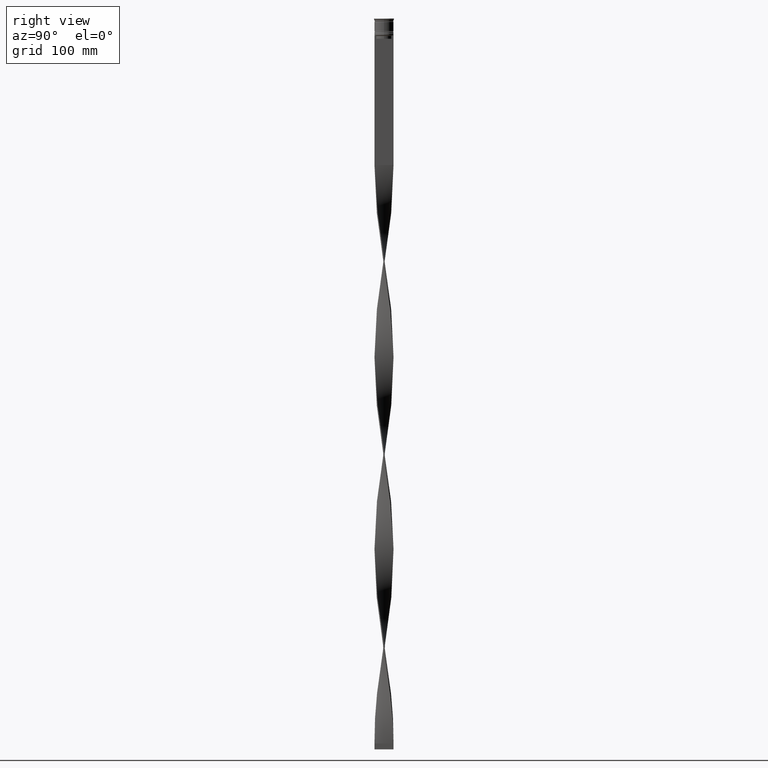
[diagram: clean part render]
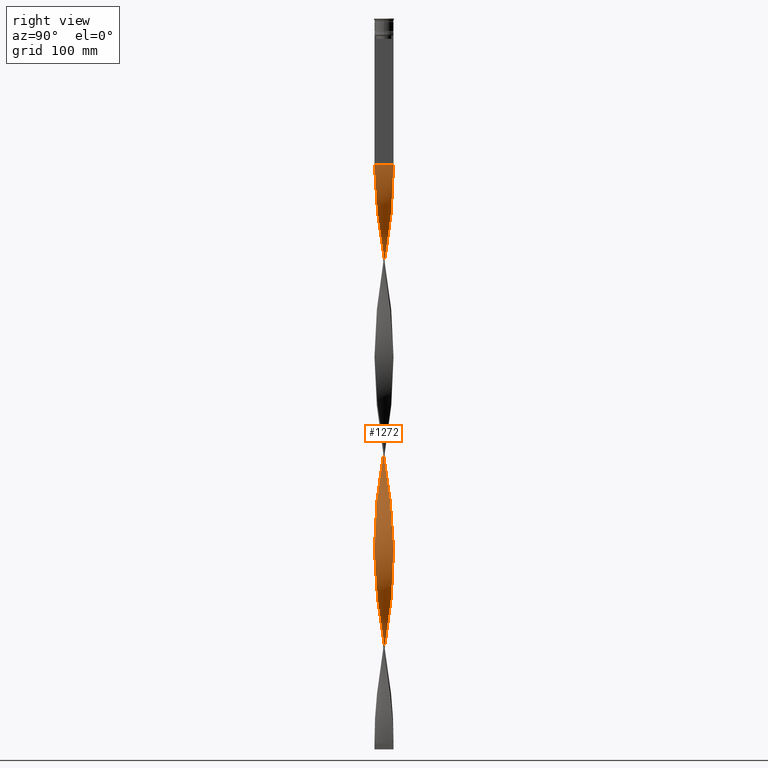
[diagram: same view with one face highlighted and labeled with its STEP entity id]
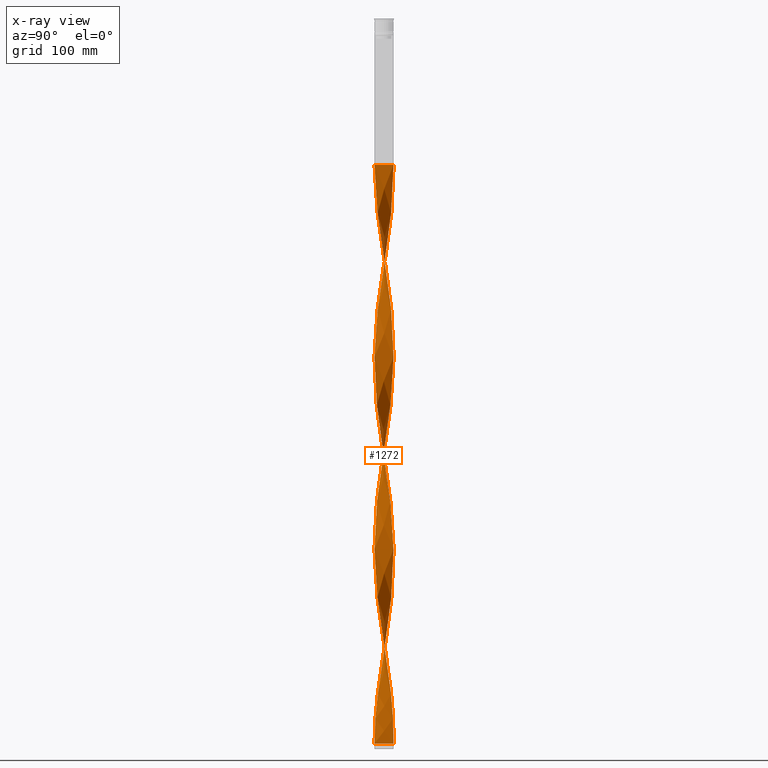
[diagram: x-ray of the same camera — body ghosted, the highlighted face saturated]
A machine part, right view. The second image highlights one B-rep face of the part: STEP entity #1272.
The next image is the same camera in x-ray: the body ghosted, the highlighted face saturated — about 0% of this face is hidden behind the body in this view.
In plain terms, the highlighted face is a freeform B-spline surface patch.
Its self-contained STEP definition (entity closure, byte-faithful):
#6 = CARTESIAN_POINT ( 'NONE',  ( -2.953492255452156989, -7.468681369799075931, -268.8000000000001251 ) ) ;
#12 = CARTESIAN_POINT ( 'NONE',  ( -5.500329109473821809, 5.852409554540299652, -489.1200000000001182 ) ) ;
#25 = VECTOR ( 'NONE', #3626, 1000.000000000000000 ) ;
#29 = CARTESIAN_POINT ( 'NONE',  ( -3.409884664421546585, -7.254149610763668932, -589.5600000000000591 ) ) ;
#31 = CARTESIAN_POINT ( 'NONE',  ( 8.015817384569142945, 0.5009885865355726553, -204.0000000000000284 ) ) ;
#38 = CARTESIAN_POINT ( 'NONE',  ( 7.762960627548699755, 1.996607696851999680, -382.2000000000000455 ) ) ;
#42 = CARTESIAN_POINT ( 'NONE',  ( -3.866277073390936181, -7.039617851728263709, -586.3200000000000500 ) ) ;
#53 = CARTESIAN_POINT ( 'NONE',  ( -7.762960627548698866, -1.996607696852002345, -544.2000000000000455 ) ) ;
#54 = CARTESIAN_POINT ( 'NONE',  ( -5.495492638774153171, 5.856951302834851880, -320.6400000000001000 ) ) ;
#57 = CARTESIAN_POINT ( 'NONE',  ( 0.003317338029196290321, 8.031457333626828898, -605.7599999999999909 ) ) ;
#60 = CARTESIAN_POINT ( 'NONE',  ( 7.265667412356198618, 3.422629830937731654, -391.9200000000000728 ) ) ;
#63 = CARTESIAN_POINT ( 'NONE',  ( -1.498723219171671284, -7.874250993733667769, -602.5200000000000955 ) ) ;
#74 = CARTESIAN_POINT ( 'NONE',  ( -2.473810677883153453, -7.624320345446617964, -596.0399999999999636 ) ) ;
#75 = CARTESIAN_POINT ( 'NONE',  ( -8.015817384569142945, -0.5009885865355698797, -366.0000000000000000 ) ) ;
#77 = CARTESIAN_POINT ( 'NONE',  ( -0.5000000000000027756, 8.000000000000003553, -609.0000000000000000 ) ) ;
#80 = CARTESIAN_POINT ( 'NONE',  ( 2.000555335823854808, -7.778309344253825586, -301.2000000000000455 ) ) ;
#85 = CARTESIAN_POINT ( 'NONE',  ( 4.292182732835652992, 6.769576603300047957, -421.0799999999999841 ) ) ;
#100 = CARTESIAN_POINT ( 'NONE',  ( -1.498723219171673948, 7.874250993733674875, -291.4800000000000182 ) ) ;
#112 = CARTESIAN_POINT ( 'NONE',  ( -6.782961227863128606, 4.300669120951436497, -502.0800000000000409 ) ) ;
#126 = CARTESIAN_POINT ( 'NONE',  ( -6.782961227863131271, -4.300669120951444491, -391.9200000000001296 ) ) ;
#135 = CARTESIAN_POINT ( 'NONE',  ( -1.498723219171673948, 7.874250993733674875, -291.4800000000000182 ) ) ;
#148 = CARTESIAN_POINT ( 'NONE',  ( -2.000555335823849035, -7.778309344253833579, -430.8000000000000682 ) ) ;
#150 = CARTESIAN_POINT ( 'NONE',  ( -5.500329109473821809, 5.852409554540299652, -165.1200000000000045 ) ) ;
#156 = CARTESIAN_POINT ( 'NONE',  ( -2.953492255452163207, 7.468681369799081260, -301.2000000000000455 ) ) ;
#180 = CARTESIAN_POINT ( 'NONE',  ( 2.953492255452160542, -7.468681369799081260, -139.1999999999999602 ) ) ;
#199 =( BOUNDED_SURFACE ( )  B_SPLINE_SURFACE ( 1, 2, ( 
 ( #4459, #1358, #368, #1684, #3378, #3442, #3012, #2673, #4395, #2367, #3033, #3057, #323, #3778, #4112, #2016, #4444, #4418, #1336, #1290, #2739, #1706, #2065, #2345, #1313, #3747, #4045, #1020, #3726, #2412, #3707, #2719, #1048, #688, #346, #280, #2436, #618, #1996, #640, #709, #302, #996, #1727, #3101, #6, #2766, #4141, #3800, #4092, #2385, #661, #2044, #4164, #2457, #80, #1459, #1094, #1070, #2139, #3130, #2504, #3824, #1413, #732, #1801, #2482, #2836, #4215, #2112, #1118, #3848, #3489, #758, #3512, #2789, #419, #397, #1778, #1753, #38, #3153, #2809, #60, #1436, #4187, #3173, #1804, #3852, #3515, #3872, #1825, #85, #4145, #2792, #762, #2486, #3805, #2416, #1052, #783, #3135, #3782, #2143, #2461, #3828, #737, #3177, #1758, #423, #4169, #3204, #1463, #12, #2166, #2863, #713, #112, #2093, #691, #4220, #2841, #3446, #1489, #1122, #3105, #2070, #2509, #3536, #3468, #350, #2439, #445, #4191, #1391, #1417, #4240, #1075, #2118, #1099, #2771, #1731, #372, #42, #3496, #400, #1782, #3156, #63, #1440, #2814 ),
 ( #4326, #2256, #803, #1867, #1912, #180, #3560, #1589, #3644, #1529, #2216, #1207, #1188, #4288, #469, #3311, #2609, #3579, #2883, #213, #2574, #1225, #533, #1886, #1927, #1160, #890, #3294, #200, #2593, #2236, #1576, #2947, #490, #3981, #2964, #829, #2280, #549, #1140, #2552, #2527, #1557, #3893, #3923, #2191, #3964, #4260, #3245, #1847, #3600, #3227, #135, #2929, #4310, #156, #3946, #849, #1508, #2906, #510, #3268, #868, #3621, #3375, #2990, #3723, #615, #3745, #928, #2364, #2633, #2716, #1654, #909, #1247, #1265, #2314, #2298, #2042, #2696, #636, #658, #3680, #4089, #278, #592, #975, #2013, #568, #3395, #1971, #1944, #3420, #994, #951, #3661, #3030, #1286, #2342, #1702, #3330, #3355, #3009, #4414, #4068, #321, #4392, #233, #299, #4346, #4000, #1616, #257, #4368, #2670, #1310, #1679, #3055, #1635, #4041, #2649, #3704, #4020, #4441, #1334, #2383, #1993, #1382, #3820, #1355, #2806, #2432, #3487, #2736, #3128, #1116, #4184, #2135, #3438, #2502, #3775, #3531, #1044, #778, #2763, #1067, #1090, #395, #57, #77 ) ),
 .UNSPECIFIED., .F., .F., .F. ) 
 B_SPLINE_SURFACE_WITH_KNOTS ( ( 2, 2 ),
 ( 3, 2, 2, 2, 2, 2, 2, 2, 2, 2, 2, 2, 2, 2, 2, 2, 2, 2, 2, 2, 2, 2, 2, 2, 2, 2, 2, 2, 2, 2, 2, 2, 2, 2, 2, 2, 2, 2, 2, 2, 2, 2, 2, 2, 2, 2, 2, 2, 2, 2, 2, 2, 2, 2, 2, 2, 2, 2, 2, 2, 2, 2, 2, 2, 2, 2, 2, 2, 2, 2, 2, 2, 2, 2, 2, 3 ),
 ( 0.000000000000000000, 1.000000000000000000 ),
 ( 0.000000000000000000, 0.01000000000000000021, 0.02000000000000000042, 0.02999999999999999889, 0.04000000000000000083, 0.05000000000000000278, 0.05999999999999999778, 0.07000000000000000666, 0.08000000000000000167, 0.08999999999999999667, 0.1000000000000000056, 0.1100000000000000006, 0.1199999999999999956, 0.1300000000000000044, 0.1400000000000000133, 0.1499999999999999944, 0.1600000000000000033, 0.1700000000000000122, 0.1799999999999999933, 0.1900000000000000022, 0.2000000000000000111, 0.2099999999999999922, 0.2200000000000000011, 0.2300000000000000100, 0.2399999999999999911, 0.2500000000000000000, 0.2600000000000000089, 0.2700000000000000178, 0.2800000000000000266, 0.2899999999999999800, 0.2999999999999999889, 0.3099999999999999978, 0.3200000000000000067, 0.3300000000000000155, 0.3400000000000000244, 0.3499999999999999778, 0.3599999999999999867, 0.3699999999999999956, 0.3800000000000000044, 0.3900000000000000133, 0.4000000000000000222, 0.4099999999999999756, 0.4199999999999999845, 0.4299999999999999933, 0.4400000000000000022, 0.4500000000000000111, 0.4600000000000000200, 0.4699999999999999734, 0.4799999999999999822, 0.4899999999999999911, 0.5000000000000000000, 0.5100000000000000089, 0.5200000000000000178, 0.5300000000000000266, 0.5400000000000000355, 0.5500000000000000444, 0.5600000000000000533, 0.5699999999999999512, 0.5799999999999999600, 0.5899999999999999689, 0.5999999999999999778, 0.6099999999999999867, 0.6199999999999999956, 0.6300000000000000044, 0.6400000000000000133, 0.6500000000000000222, 0.6600000000000000311, 0.6700000000000000400, 0.6800000000000000488, 0.6899999999999999467, 0.6999999999999999556, 0.7099999999999999645, 0.7199999999999999734, 0.7299999999999999822, 0.7399999999999999911, 0.7500000000000000000 ),
 .UNSPECIFIED. ) 
 GEOMETRIC_REPRESENTATION_ITEM ( )  RATIONAL_B_SPLINE_SURFACE ( (
 ( 1.000000000000000000, 0.9980267284282715590, 1.000000000000000000, 0.9980267284282715590, 1.000000000000000000, 0.9980267284282715590, 1.000000000000000000, 0.9980267284282715590, 1.000000000000000000, 0.9980267284282715590, 1.000000000000000000, 0.9980267284282715590, 1.000000000000000000, 0.9980267284282715590, 1.000000000000000000, 0.9980267284282715590, 1.000000000000000000, 0.9980267284282715590, 1.000000000000000000, 0.9980267284282715590, 1.000000000000000000, 0.9980267284282715590, 1.000000000000000000, 0.9980267284282715590, 1.000000000000000000, 0.9980267284282715590, 1.000000000000000000, 0.9980267284282715590, 1.000000000000000000, 0.9980267284282715590, 1.000000000000000000, 0.9980267284282715590, 1.000000000000000000, 0.9980267284282715590, 1.000000000000000000, 0.9980267284282715590, 1.000000000000000000, 0.9980267284282715590, 1.000000000000000000, 0.9980267284282715590, 1.000000000000000000, 0.9980267284282715590, 1.000000000000000000, 0.9980267284282715590, 1.000000000000000000, 0.9980267284282715590, 1.000000000000000000, 0.9980267284282715590, 1.000000000000000000, 0.9980267284282715590, 1.000000000000000000, 0.9980267284282715590, 1.000000000000000000, 0.9980267284282715590, 1.000000000000000000, 0.9980267284282715590, 1.000000000000000000, 0.9980267284282715590, 1.000000000000000000, 0.9980267284282715590, 1.000000000000000000, 0.9980267284282715590, 1.000000000000000000, 0.9980267284282715590, 1.000000000000000000, 0.9980267284282715590, 1.000000000000000000, 0.9980267284282715590, 1.000000000000000000, 0.9980267284282715590, 1.000000000000000000, 0.9980267284282715590, 1.000000000000000000, 0.9980267284282715590, 1.000000000000000000, 0.9980267284282715590, 1.000000000000000000, 0.9980267284282715590, 1.000000000000000000, 0.9980267284282715590, 1.000000000000000000, 0.9980267284282715590, 1.000000000000000000, 0.9980267284282715590, 1.000000000000000000, 0.9980267284282715590, 1.000000000000000000, 0.9980267284282715590, 1.000000000000000000, 0.9980267284282715590, 1.000000000000000000, 0.9980267284282715590, 1.000000000000000000, 0.9980267284282715590, 1.000000000000000000, 0.9980267284282715590, 1.000000000000000000, 0.9980267284282715590, 1.000000000000000000, 0.9980267284282715590, 1.000000000000000000, 0.9980267284282715590, 1.000000000000000000, 0.9980267284282715590, 1.000000000000000000, 0.9980267284282715590, 1.000000000000000000, 0.9980267284282715590, 1.000000000000000000, 0.9980267284282715590, 1.000000000000000000, 0.9980267284282715590, 1.000000000000000000, 0.9980267284282715590, 1.000000000000000000, 0.9980267284282715590, 1.000000000000000000, 0.9980267284282715590, 1.000000000000000000, 0.9980267284282715590, 1.000000000000000000, 0.9980267284282715590, 1.000000000000000000, 0.9980267284282715590, 1.000000000000000000, 0.9980267284282715590, 1.000000000000000000, 0.9980267284282715590, 1.000000000000000000, 0.9980267284282715590, 1.000000000000000000, 0.9980267284282715590, 1.000000000000000000, 0.9980267284282715590, 1.000000000000000000, 0.9980267284282715590, 1.000000000000000000, 0.9980267284282715590, 1.000000000000000000, 0.9980267284282715590, 1.000000000000000000, 0.9980267284282715590, 1.000000000000000000, 0.9980267284282715590, 1.000000000000000000, 0.9980267284282715590, 1.000000000000000000, 0.9980267284282715590, 1.000000000000000000, 0.9980267284282715590, 1.000000000000000000),
 ( 1.000000000000000000, 0.9980267284282715590, 1.000000000000000000, 0.9980267284282715590, 1.000000000000000000, 0.9980267284282715590, 1.000000000000000000, 0.9980267284282715590, 1.000000000000000000, 0.9980267284282715590, 1.000000000000000000, 0.9980267284282715590, 1.000000000000000000, 0.9980267284282715590, 1.000000000000000000, 0.9980267284282715590, 1.000000000000000000, 0.9980267284282715590, 1.000000000000000000, 0.9980267284282715590, 1.000000000000000000, 0.9980267284282715590, 1.000000000000000000, 0.9980267284282715590, 1.000000000000000000, 0.9980267284282715590, 1.000000000000000000, 0.9980267284282715590, 1.000000000000000000, 0.9980267284282715590, 1.000000000000000000, 0.9980267284282715590, 1.000000000000000000, 0.9980267284282715590, 1.000000000000000000, 0.9980267284282715590, 1.000000000000000000, 0.9980267284282715590, 1.000000000000000000, 0.9980267284282715590, 1.000000000000000000, 0.9980267284282715590, 1.000000000000000000, 0.9980267284282715590, 1.000000000000000000, 0.9980267284282715590, 1.000000000000000000, 0.9980267284282715590, 1.000000000000000000, 0.9980267284282715590, 1.000000000000000000, 0.9980267284282715590, 1.000000000000000000, 0.9980267284282715590, 1.000000000000000000, 0.9980267284282715590, 1.000000000000000000, 0.9980267284282715590, 1.000000000000000000, 0.9980267284282715590, 1.000000000000000000, 0.9980267284282715590, 1.000000000000000000, 0.9980267284282715590, 1.000000000000000000, 0.9980267284282715590, 1.000000000000000000, 0.9980267284282715590, 1.000000000000000000, 0.9980267284282715590, 1.000000000000000000, 0.9980267284282715590, 1.000000000000000000, 0.9980267284282715590, 1.000000000000000000, 0.9980267284282715590, 1.000000000000000000, 0.9980267284282715590, 1.000000000000000000, 0.9980267284282715590, 1.000000000000000000, 0.9980267284282715590, 1.000000000000000000, 0.9980267284282715590, 1.000000000000000000, 0.9980267284282715590, 1.000000000000000000, 0.9980267284282715590, 1.000000000000000000, 0.9980267284282715590, 1.000000000000000000, 0.9980267284282715590, 1.000000000000000000, 0.9980267284282715590, 1.000000000000000000, 0.9980267284282715590, 1.000000000000000000, 0.9980267284282715590, 1.000000000000000000, 0.9980267284282715590, 1.000000000000000000, 0.9980267284282715590, 1.000000000000000000, 0.9980267284282715590, 1.000000000000000000, 0.9980267284282715590, 1.000000000000000000, 0.9980267284282715590, 1.000000000000000000, 0.9980267284282715590, 1.000000000000000000, 0.9980267284282715590, 1.000000000000000000, 0.9980267284282715590, 1.000000000000000000, 0.9980267284282715590, 1.000000000000000000, 0.9980267284282715590, 1.000000000000000000, 0.9980267284282715590, 1.000000000000000000, 0.9980267284282715590, 1.000000000000000000, 0.9980267284282715590, 1.000000000000000000, 0.9980267284282715590, 1.000000000000000000, 0.9980267284282715590, 1.000000000000000000, 0.9980267284282715590, 1.000000000000000000, 0.9980267284282715590, 1.000000000000000000, 0.9980267284282715590, 1.000000000000000000, 0.9980267284282715590, 1.000000000000000000, 0.9980267284282715590, 1.000000000000000000, 0.9980267284282715590, 1.000000000000000000, 0.9980267284282715590, 1.000000000000000000, 0.9980267284282715590, 1.000000000000000000, 0.9980267284282715590, 1.000000000000000000, 0.9980267284282715590, 1.000000000000000000, 0.9980267284282715590, 1.000000000000000000) ) ) 
 REPRESENTATION_ITEM ( '' )  SURFACE ( )  );
#200 = CARTESIAN_POINT ( 'NONE',  ( 7.764607348536650022, 1.990194142050143666, -213.7200000000000273 ) ) ;
#207 = CARTESIAN_POINT ( 'NONE',  ( 5.845393947331972484, 5.484648539377414700, -563.6399999999999864 ) ) ;
#209 = CARTESIAN_POINT ( 'NONE',  ( -7.022536801505615323, -3.864450397080966049, -233.1599999999999966 ) ) ;
#213 = CARTESIAN_POINT ( 'NONE',  ( 7.637344718665186605, -2.485011781637413986, -184.5600000000000307 ) ) ;
#224 = CARTESIAN_POINT ( 'NONE',  ( 2.480108178533297458, 7.622274163448353512, -589.5600000000000591 ) ) ;
#226 = CARTESIAN_POINT ( 'NONE',  ( -8.015400789812517246, -0.5076101705763141902, -210.4800000000000182 ) ) ;
#233 = CARTESIAN_POINT ( 'NONE',  ( 4.292182732835656545, -6.769576603300054174, -472.9200000000000159 ) ) ;
#251 = CARTESIAN_POINT ( 'NONE',  ( 7.453943633173757632, 2.947664213147158208, -544.2000000000000455 ) ) ;
#253 = CARTESIAN_POINT ( 'NONE',  ( -3.866277073390936625, -7.039617851728263709, -262.3199999999999932 ) ) ;
#257 = CARTESIAN_POINT ( 'NONE',  ( 6.186229683506285326, -5.121999629979046453, -489.1200000000001182 ) ) ;
#274 = CARTESIAN_POINT ( 'NONE',  ( -7.762960627548698866, -1.996607696852002345, -220.2000000000000171 ) ) ;
#276 = CARTESIAN_POINT ( 'NONE',  ( 3.866277073390941510, -7.039617851728269926, -145.6800000000000352 ) ) ;
#278 = CARTESIAN_POINT ( 'NONE',  ( -6.190458785190114277, -5.116887524214530636, -398.4000000000000909 ) ) ;
#280 = CARTESIAN_POINT ( 'NONE',  ( -6.779406190655033804, -4.306270963224198667, -236.4000000000000341 ) ) ;
#293 = CARTESIAN_POINT ( 'NONE',  ( 7.639394946319397306, -2.478701829738565010, -353.0400000000000205 ) ) ;
#299 = CARTESIAN_POINT ( 'NONE',  ( 4.718088392280371579, -6.499535354871838422, -476.1600000000000250 ) ) ;
#302 = CARTESIAN_POINT ( 'NONE',  ( -4.718088392280368026, -6.499535354871833093, -255.8399999999999750 ) ) ;
#318 = CARTESIAN_POINT ( 'NONE',  ( -5.500329109473821809, 5.852409554540299652, -489.1200000000001182 ) ) ;
#320 = CARTESIAN_POINT ( 'NONE',  ( 2.000555335823852587, 7.778309344253832691, -268.8000000000000682 ) ) ;
#321 = CARTESIAN_POINT ( 'NONE',  ( 3.409884664421551026, -7.254149610763674261, -466.4399999999999977 ) ) ;
#323 = CARTESIAN_POINT ( 'NONE',  ( -5.111892533718801701, 6.174022572335633896, -161.8799999999999955 ) ) ;
#337 = CARTESIAN_POINT ( 'NONE',  ( -5.845393947331967155, 5.484648539377410259, -492.3600000000000136 ) ) ;
#346 = CARTESIAN_POINT ( 'NONE',  ( -7.022536801505615323, -3.864450397080966049, -233.1599999999999966 ) ) ;
#350 = CARTESIAN_POINT ( 'NONE',  ( -7.762960627548698866, -1.996607696852002345, -544.2000000000000455 ) ) ;
#361 = CARTESIAN_POINT ( 'NONE',  ( -0.003317338029197808638, 8.031457333626823569, -450.2400000000000659 ) ) ;
#368 = CARTESIAN_POINT ( 'NONE',  ( -0.5066085178571945180, 7.999584227297972916, -129.4800000000000182 ) ) ;
#372 = CARTESIAN_POINT ( 'NONE',  ( -4.292182732835652104, -6.769576603300047957, -583.0800000000000409 ) ) ;
#390 = CARTESIAN_POINT ( 'NONE',  ( 4.292182732835652992, 6.769576603300047957, -421.0799999999999841 ) ) ;
#392 = CARTESIAN_POINT ( 'NONE',  ( -3.409884664421553691, 7.254149610763673373, -304.4400000000000546 ) ) ;
#395 = CARTESIAN_POINT ( 'NONE',  ( 0.5066085178571940739, 7.999584227297980021, -602.5200000000000955 ) ) ;
#397 = CARTESIAN_POINT ( 'NONE',  ( 8.015400789812517246, 0.5076101705763128580, -372.4800000000000750 ) ) ;
#400 = CARTESIAN_POINT ( 'NONE',  ( -2.953492255452156989, -7.468681369799075931, -592.8000000000001819 ) ) ;
#412 = CARTESIAN_POINT ( 'NONE',  ( 1.994129100314147918, 7.779959321094163549, -437.2800000000000296 ) ) ;
#414 = CARTESIAN_POINT ( 'NONE',  ( -1.994129100314149694, 7.779959321094168878, -294.7199999999999704 ) ) ;
#419 = CARTESIAN_POINT ( 'NONE',  ( 8.015609087190826543, 0.003310792020373622829, -369.2400000000000091 ) ) ;
#423 = CARTESIAN_POINT ( 'NONE',  ( -3.872091084340837153, 7.036421572160659110, -476.1600000000000250 ) ) ;
#436 = CARTESIAN_POINT ( 'NONE',  ( 4.292182732835656545, -6.769576603300054174, -472.9200000000000159 ) ) ;
#445 = CARTESIAN_POINT ( 'NONE',  ( -7.451506065510689503, -2.953820806287570377, -550.6800000000000637 ) ) ;
#458 = CARTESIAN_POINT ( 'NONE',  ( -7.451506065510697496, 2.953820806287569045, -343.3199999999999932 ) ) ;
#462 = CARTESIAN_POINT ( 'NONE',  ( -4.297773521152309151, 6.766028581145814513, -155.4000000000000057 ) ) ;
#469 = CARTESIAN_POINT ( 'NONE',  ( 6.482817937080661785, -4.714135296601624781, -168.3600000000000136 ) ) ;
#481 = CARTESIAN_POINT ( 'NONE',  ( 0.003317338029196290755, 8.031457333626830675, -281.7599999999999909 ) ) ;
#483 = CARTESIAN_POINT ( 'NONE',  ( -4.723455957963782481, 6.495635590130969916, -158.6400000000000148 ) ) ;
#490 = CARTESIAN_POINT ( 'NONE',  ( 6.782961227863133047, 4.300669120951441826, -229.9200000000000443 ) ) ;
#502 = CARTESIAN_POINT ( 'NONE',  ( 7.022536801505622428, -3.864450397080966937, -498.8400000000000318 ) ) ;
#510 = CARTESIAN_POINT ( 'NONE',  ( -5.106790515527262819, 6.178243328853343819, -317.4000000000000341 ) ) ;
#527 = CARTESIAN_POINT ( 'NONE',  ( -1.009899697685191278, 7.967711120969122263, -132.7199999999999989 ) ) ;
#533 = CARTESIAN_POINT ( 'NONE',  ( 7.951988663122376622, -1.007906891321452170, -194.2800000000000011 ) ) ;
#549 = CARTESIAN_POINT ( 'NONE',  ( 5.111892533718805254, 6.174022572335640113, -246.1200000000000045 ) ) ;
#552 = CARTESIAN_POINT ( 'NONE',  ( -0.4999999999999975020, -7.999999999999996447, -609.0000000000000000 ) ) ;
#560 = CARTESIAN_POINT ( 'NONE',  ( 4.297773521152314480, 6.766028581145818066, -576.6000000000000227 ) ) ;
#562 = CARTESIAN_POINT ( 'NONE',  ( -7.889819750753890304, 1.501686454361714551, -197.5200000000000387 ) ) ;
#568 = CARTESIAN_POINT ( 'NONE',  ( -4.723455957963785146, -6.495635590130977022, -411.3600000000000705 ) ) ;
#581 = CARTESIAN_POINT ( 'NONE',  ( 7.025726773945621950, 3.858647858753593063, -550.6800000000000637 ) ) ;
#584 = CARTESIAN_POINT ( 'NONE',  ( 7.889819750753890304, -1.501686454361710332, -359.5200000000000387 ) ) ;
#592 = CARTESIAN_POINT ( 'NONE',  ( -5.845393947331969819, -5.484648539377416476, -401.6399999999999864 ) ) ;
#609 = CARTESIAN_POINT ( 'NONE',  ( 6.482817937080655568, 4.714135296601623004, -401.6399999999999864 ) ) ;
#611 = CARTESIAN_POINT ( 'NONE',  ( 2.473810677883154785, -7.624320345446625069, -135.9600000000000080 ) ) ;
#614 = EDGE_CURVE ( 'NONE', #3514, #642, #3897, .T. ) ;
#615 = CARTESIAN_POINT ( 'NONE',  ( -7.265667412356206611, 3.422629830937731210, -340.0800000000000978 ) ) ;
#618 = CARTESIAN_POINT ( 'NONE',  ( -6.186229683506279109, -5.121999629979042012, -242.8800000000000239 ) ) ;
#631 =( BOUNDED_CURVE ( )  B_SPLINE_CURVE ( 2, ( #4321, #2180, #1134, #527, #2604, #822, #2522, #2210, #2274, #1550, #462, #483, #1906, #150, #1860, #3306, #2899, #4277, #1179, #2567, #3940, #3593, #1880, #562, #2691, #4338, #652, #226, #3995, #1607, #274, #2958, #1260, #3369, #209, #3026, #1940, #3323, #1330, #4409, #1281, #1651, #1304, #253, #3350, #903, #2380, #1672, #2644, #2985, #3742, #2292, #1585, #2359, #3051, #4364, #1240, #4014, #4437, #1988, #3655, #2713, #972, #3720, #2034, #923, #2310, #4064, #3675, #2629, #632, #293, #2010, #584, #3390, #1963, #1631, #3005, #4386, #2665, #4085, #991, #4035, #944, #2333, #3699, #609, #1351, #3147, #701, #1112, #3481, #390, #3457, #2081, #2732, #2498, #412, #4473, #680, #3863, #361, #2450, #2058, #2803, #4156, #2824, #1375, #1429, #1699, #1793, #725, #4454, #318, #337, #2756, #4105, #774, #1771, #4180, #4205, #2103, #1010, #1451, #1086, #1064, #3415, #1743, #3816, #3167, #53, #4132, #3766, #1038, #3121, #3071, #2401, #3434, #2472, #3840, #752, #2132, #3507, #1720, #29, #3093, #74, #2427, #3793, #1407, #2782 ),
 .UNSPECIFIED., .F., .T. ) 
 B_SPLINE_CURVE_WITH_KNOTS ( ( 3, 2, 2, 2, 2, 2, 2, 2, 2, 2, 2, 2, 2, 2, 2, 2, 2, 2, 2, 2, 2, 2, 2, 2, 2, 2, 2, 2, 2, 2, 2, 2, 2, 2, 2, 2, 2, 2, 2, 2, 2, 2, 2, 2, 2, 2, 2, 2, 2, 2, 2, 2, 2, 2, 2, 2, 2, 2, 2, 2, 2, 2, 2, 2, 2, 2, 2, 2, 2, 2, 2, 2, 2, 2, 2, 3 ),
 ( 0.000000000000000000, 0.01000000000000000021, 0.02000000000000000042, 0.02999999999999999889, 0.04000000000000000083, 0.05000000000000000971, 0.05999999999999999778, 0.07000000000000000666, 0.08000000000000000167, 0.09000000000000001055, 0.1000000000000000194, 0.1100000000000000006, 0.1199999999999999956, 0.1300000000000000044, 0.1400000000000000133, 0.1499999999999999944, 0.1600000000000000033, 0.1700000000000000122, 0.1800000000000000211, 0.1900000000000000300, 0.2000000000000000389, 0.2099999999999999922, 0.2200000000000000011, 0.2300000000000000100, 0.2399999999999999911, 0.2500000000000000000, 0.2600000000000000089, 0.2700000000000000178, 0.2800000000000000266, 0.2899999999999999800, 0.2999999999999999889, 0.3099999999999999978, 0.3200000000000000067, 0.3300000000000000155, 0.3400000000000000244, 0.3499999999999999223, 0.3600000000000000422, 0.3699999999999999400, 0.3800000000000000600, 0.3899999999999999578, 0.4000000000000000777, 0.4099999999999999756, 0.4199999999999999845, 0.4299999999999999933, 0.4400000000000000022, 0.4500000000000000111, 0.4600000000000000200, 0.4699999999999999734, 0.4799999999999999822, 0.4899999999999999911, 0.5000000000000000000, 0.5100000000000000089, 0.5200000000000000178, 0.5300000000000000266, 0.5400000000000000355, 0.5500000000000000444, 0.5600000000000000533, 0.5699999999999999512, 0.5799999999999999600, 0.5899999999999999689, 0.5999999999999999778, 0.6099999999999999867, 0.6199999999999999956, 0.6300000000000000044, 0.6400000000000000133, 0.6500000000000000222, 0.6600000000000000311, 0.6700000000000000400, 0.6800000000000000488, 0.6899999999999999467, 0.6999999999999998446, 0.7099999999999999645, 0.7200000000000000844, 0.7299999999999999822, 0.7399999999999998801, 0.7500000000000000000 ),
 .UNSPECIFIED. ) 
 CURVE ( )  GEOMETRIC_REPRESENTATION_ITEM ( )  RATIONAL_B_SPLINE_CURVE ( ( 1.000000000000000000, 0.9980267284282715590, 1.000000000000000000, 0.9980267284282715590, 1.000000000000000000, 0.9980267284282715590, 1.000000000000000000, 0.9980267284282715590, 1.000000000000000000, 0.9980267284282715590, 1.000000000000000000, 0.9980267284282715590, 1.000000000000000000, 0.9980267284282715590, 1.000000000000000000, 0.9980267284282715590, 1.000000000000000000, 0.9980267284282715590, 1.000000000000000000, 0.9980267284282715590, 1.000000000000000000, 0.9980267284282715590, 1.000000000000000000, 0.9980267284282715590, 1.000000000000000000, 0.9980267284282715590, 1.000000000000000000, 0.9980267284282715590, 1.000000000000000000, 0.9980267284282715590, 1.000000000000000000, 0.9980267284282715590, 1.000000000000000000, 0.9980267284282715590, 1.000000000000000000, 0.9980267284282715590, 1.000000000000000000, 0.9980267284282715590, 1.000000000000000000, 0.9980267284282715590, 1.000000000000000000, 0.9980267284282715590, 1.000000000000000000, 0.9980267284282715590, 1.000000000000000000, 0.9980267284282715590, 1.000000000000000000, 0.9980267284282715590, 1.000000000000000000, 0.9980267284282715590, 1.000000000000000000, 0.9980267284282715590, 1.000000000000000000, 0.9980267284282715590, 1.000000000000000000, 0.9980267284282715590, 1.000000000000000000, 0.9980267284282715590, 1.000000000000000000, 0.9980267284282715590, 1.000000000000000000, 0.9980267284282715590, 1.000000000000000000, 0.9980267284282715590, 1.000000000000000000, 0.9980267284282715590, 1.000000000000000000, 0.9980267284282715590, 1.000000000000000000, 0.9980267284282715590, 1.000000000000000000, 0.9980267284282715590, 1.000000000000000000, 0.9980267284282715590, 1.000000000000000000, 0.9980267284282715590, 1.000000000000000000, 0.9980267284282715590, 1.000000000000000000, 0.9980267284282715590, 1.000000000000000000, 0.9980267284282715590, 1.000000000000000000, 0.9980267284282715590, 1.000000000000000000, 0.9980267284282715590, 1.000000000000000000, 0.9980267284282715590, 1.000000000000000000, 0.9980267284282715590, 1.000000000000000000, 0.9980267284282715590, 1.000000000000000000, 0.9980267284282715590, 1.000000000000000000, 0.9980267284282715590, 1.000000000000000000, 0.9980267284282715590, 1.000000000000000000, 0.9980267284282715590, 1.000000000000000000, 0.9980267284282715590, 1.000000000000000000, 0.9980267284282715590, 1.000000000000000000, 0.9980267284282715590, 1.000000000000000000, 0.9980267284282715590, 1.000000000000000000, 0.9980267284282715590, 1.000000000000000000, 0.9980267284282715590, 1.000000000000000000, 0.9980267284282715590, 1.000000000000000000, 0.9980267284282715590, 1.000000000000000000, 0.9980267284282715590, 1.000000000000000000, 0.9980267284282715590, 1.000000000000000000, 0.9980267284282715590, 1.000000000000000000, 0.9980267284282715590, 1.000000000000000000, 0.9980267284282715590, 1.000000000000000000, 0.9980267284282715590, 1.000000000000000000, 0.9980267284282715590, 1.000000000000000000, 0.9980267284282715590, 1.000000000000000000, 0.9980267284282715590, 1.000000000000000000, 0.9980267284282715590, 1.000000000000000000, 0.9980267284282715590, 1.000000000000000000, 0.9980267284282715590, 1.000000000000000000, 0.9980267284282715590, 1.000000000000000000, 0.9980267284282715590, 1.000000000000000000, 0.9980267284282715590, 1.000000000000000000, 0.9980267284282715590, 1.000000000000000000, 0.9980267284282715590, 1.000000000000000000 ) ) 
 REPRESENTATION_ITEM ( '' )  );
#632 = CARTESIAN_POINT ( 'NONE',  ( 7.453943633173751415, -2.947664213147155987, -349.8000000000000114 ) ) ;
#635 = CARTESIAN_POINT ( 'NONE',  ( 7.764607348536650022, 1.990194142050143666, -213.7200000000000273 ) ) ;
#636 = CARTESIAN_POINT ( 'NONE',  ( -7.268492320028113518, -3.416626596555748296, -385.4399999999999977 ) ) ;
#640 = CARTESIAN_POINT ( 'NONE',  ( -5.495492638774146066, -5.856951302834849216, -249.3600000000000136 ) ) ;
#642 = VERTEX_POINT ( 'NONE', #1870 ) ;
#652 = CARTESIAN_POINT ( 'NONE',  ( -8.015609087190826543, -0.003310792020371129164, -207.2400000000000091 ) ) ;
#655 = CARTESIAN_POINT ( 'NONE',  ( 2.480108178533297458, 7.622274163448353512, -265.5600000000000023 ) ) ;
#658 = CARTESIAN_POINT ( 'NONE',  ( -7.025726773945623727, -3.858647858753592175, -388.6800000000000068 ) ) ;
#661 = CARTESIAN_POINT ( 'NONE',  ( 0.003317338029197591364, -8.031457333626821793, -288.2400000000001796 ) ) ;
#671 = VERTEX_POINT ( 'NONE', #552 ) ;
#680 = CARTESIAN_POINT ( 'NONE',  ( 1.003317338029197314, 7.968542666373173766, -443.7600000000000477 ) ) ;
#682 = CARTESIAN_POINT ( 'NONE',  ( 7.451506065510696608, -2.953820806287573042, -181.3200000000000216 ) ) ;
#688 = CARTESIAN_POINT ( 'NONE',  ( -7.265667412356199506, -3.422629830937729434, -229.9200000000000443 ) ) ;
#691 = CARTESIAN_POINT ( 'NONE',  ( -7.268492320028109077, 3.416626596555742523, -508.5600000000001160 ) ) ;
#701 = CARTESIAN_POINT ( 'NONE',  ( 5.495492638774146954, 5.856951302834849216, -411.3600000000000705 ) ) ;
#703 = CARTESIAN_POINT ( 'NONE',  ( 5.845393947331972484, 5.484648539377414700, -239.6400000000000148 ) ) ;
#709 = CARTESIAN_POINT ( 'NONE',  ( -5.106790515527258378, -6.178243328853339378, -252.6000000000000512 ) ) ;
#713 = CARTESIAN_POINT ( 'NONE',  ( -6.486710006526619665, 4.708778322582978682, -498.8400000000000318 ) ) ;
#725 = CARTESIAN_POINT ( 'NONE',  ( -4.723455957963782481, 6.495635590130969916, -482.6400000000000432 ) ) ;
#726 = CARTESIAN_POINT ( 'NONE',  ( -6.190458785190114277, -5.116887524214530636, -398.4000000000000909 ) ) ;
#732 = CARTESIAN_POINT ( 'NONE',  ( 5.845393947331968043, -5.484648539377409371, -330.3600000000000136 ) ) ;
#737 = CARTESIAN_POINT ( 'NONE',  ( -2.480108178533296570, 7.622274163448347295, -466.4399999999999977 ) ) ;
#752 = CARTESIAN_POINT ( 'NONE',  ( -5.106790515527258378, -6.178243328853339378, -576.6000000000000227 ) ) ;
#753 = CARTESIAN_POINT ( 'NONE',  ( -4.292182732835657433, 6.769576603300054174, -310.9199999999999591 ) ) ;
#758 = CARTESIAN_POINT ( 'NONE',  ( 7.889819750753890304, -1.501686454361710332, -359.5200000000000955 ) ) ;
#762 = CARTESIAN_POINT ( 'NONE',  ( 2.953492255452154325, 7.468681369799076819, -430.8000000000000682 ) ) ;
#774 = CARTESIAN_POINT ( 'NONE',  ( -6.782961227863128606, 4.300669120951436497, -502.0800000000000978 ) ) ;
#775 = CARTESIAN_POINT ( 'NONE',  ( -6.486710006526624106, -4.708778322582984011, -395.1600000000000250 ) ) ;
#778 = CARTESIAN_POINT ( 'NONE',  ( 2.480108178533297458, 7.622274163448353512, -589.5600000000000591 ) ) ;
#783 = CARTESIAN_POINT ( 'NONE',  ( 0.5000000000000001110, 7.999999999999996447, -447.0000000000000000 ) ) ;
#794 = CARTESIAN_POINT ( 'NONE',  ( -2.473810677883156561, 7.624320345446625069, -297.9599999999999795 ) ) ;
#803 = CARTESIAN_POINT ( 'NONE',  ( 1.498723219171673504, -7.874250993733674875, -129.4800000000000182 ) ) ;
#819 = CARTESIAN_POINT ( 'NONE',  ( 5.495492638774151395, -5.856951302834852768, -482.6400000000000432 ) ) ;
#822 = CARTESIAN_POINT ( 'NONE',  ( -2.000555335823852587, 7.778309344253825586, -139.1999999999999886 ) ) ;
#829 = CARTESIAN_POINT ( 'NONE',  ( 5.845393947331972484, 5.484648539377414700, -239.6400000000000148 ) ) ;
#849 = CARTESIAN_POINT ( 'NONE',  ( -3.866277073390940178, 7.039617851728269038, -307.6800000000000637 ) ) ;
#861 = CARTESIAN_POINT ( 'NONE',  ( 7.268492320028114406, 3.416626596555746076, -547.4400000000001683 ) ) ;
#868 = CARTESIAN_POINT ( 'NONE',  ( -5.840861161140218805, 5.489475466406950943, -323.8799999999999955 ) ) ;
#882 = CARTESIAN_POINT ( 'NONE',  ( 6.486710006526624106, 4.708778322582984899, -557.1600000000000819 ) ) ;
#890 = CARTESIAN_POINT ( 'NONE',  ( 7.952818567661520177, 1.001337520448643437, -207.2400000000000091 ) ) ;
#902 = CARTESIAN_POINT ( 'NONE',  ( 6.190458785190118718, 5.116887524214525307, -560.3999999999999773 ) ) ;
#903 = CARTESIAN_POINT ( 'NONE',  ( -2.953492255452156989, -7.468681369799075931, -268.8000000000000682 ) ) ;
#909 = CARTESIAN_POINT ( 'NONE',  ( -8.015609087190831872, 0.003310792020369936542, -362.7600000000000477 ) ) ;
#921 = CARTESIAN_POINT ( 'NONE',  ( 8.015609087190831872, -0.003310792020370695483, -524.7599999999999909 ) ) ;
#923 = CARTESIAN_POINT ( 'NONE',  ( 6.190458785190111612, -5.116887524214522642, -333.6000000000000227 ) ) ;
#928 = CARTESIAN_POINT ( 'NONE',  ( -7.637344718665186605, 2.485011781637413097, -346.5599999999999454 ) ) ;
#931 = ORIENTED_EDGE ( 'NONE', *, *, #3938, .F. ) ;
#934 = CARTESIAN_POINT ( 'NONE',  ( -0.5000000000000027756, 8.000000000000003553, -609.0000000000000000 ) ) ;
#944 = CARTESIAN_POINT ( 'NONE',  ( 7.265667412356198618, 3.422629830937731654, -391.9200000000001296 ) ) ;
#947 = CARTESIAN_POINT ( 'NONE',  ( 6.186229683506286214, -5.121999629979046453, -165.1200000000000045 ) ) ;
#951 = CARTESIAN_POINT ( 'NONE',  ( -2.000555335823849035, -7.778309344253833579, -430.8000000000000682 ) ) ;
#972 = CARTESIAN_POINT ( 'NONE',  ( 5.111892533718801701, -6.174022572335633896, -323.8799999999999955 ) ) ;
#975 = CARTESIAN_POINT ( 'NONE',  ( -5.500329109473827138, -5.852409554540304981, -404.8799999999999955 ) ) ;
#982 = CARTESIAN_POINT ( 'NONE',  ( -0.4999999999999992784, -2.666666666666663410, -609.0000000000000000 ) ) ;
#991 = CARTESIAN_POINT ( 'NONE',  ( 7.637344718665179499, 2.485011781637414430, -385.4399999999999977 ) ) ;
#993 = CARTESIAN_POINT ( 'NONE',  ( 7.951988663122376622, -1.007906891321452170, -194.2800000000000011 ) ) ;
#994 = CARTESIAN_POINT ( 'NONE',  ( -2.480108178533298346, -7.622274163448353512, -427.5600000000000023 ) ) ;
#996 = CARTESIAN_POINT ( 'NONE',  ( -4.292182732835652104, -6.769576603300047957, -259.0799999999999841 ) ) ;
#1010 = CARTESIAN_POINT ( 'NONE',  ( -7.764607348536644693, 1.990194142050140114, -518.2800000000000864 ) ) ;
#1012 = CARTESIAN_POINT ( 'NONE',  ( 4.718088392280371579, -6.499535354871838422, -152.1599999999999966 ) ) ;
#1020 = CARTESIAN_POINT ( 'NONE',  ( -8.015400789812517246, -0.5076101705763140792, -210.4800000000000182 ) ) ;
#1038 = CARTESIAN_POINT ( 'NONE',  ( -7.265667412356199506, -3.422629830937729434, -553.9200000000000728 ) ) ;
#1041 = CARTESIAN_POINT ( 'NONE',  ( 1.009899697685191944, 7.967711120969127592, -275.2799999999999727 ) ) ;
#1044 = CARTESIAN_POINT ( 'NONE',  ( 2.959661021242743217, 7.466238982642876998, -586.3200000000000500 ) ) ;
#1048 = CARTESIAN_POINT ( 'NONE',  ( -7.451506065510689503, -2.953820806287570377, -226.6800000000000068 ) ) ;
#1052 = CARTESIAN_POINT ( 'NONE',  ( 1.003317338029197536, 7.968542666373174654, -443.7599999999999909 ) ) ;
#1064 = CARTESIAN_POINT ( 'NONE',  ( -8.015817384569135839, 0.5009885865355701018, -528.0000000000000000 ) ) ;
#1065 = CARTESIAN_POINT ( 'NONE',  ( -7.025726773945623727, -3.858647858753592175, -388.6800000000000068 ) ) ;
#1067 = CARTESIAN_POINT ( 'NONE',  ( 1.505227516754523709, 7.873010232611480141, -596.0399999999999636 ) ) ;
#1070 = CARTESIAN_POINT ( 'NONE',  ( 3.415876052791789519, -7.251330277401763169, -310.9199999999999591 ) ) ;
#1075 = CARTESIAN_POINT ( 'NONE',  ( -6.186229683506279109, -5.121999629979042012, -566.8799999999999955 ) ) ;
#1086 = CARTESIAN_POINT ( 'NONE',  ( -7.952818567661513960, 1.001337520448642326, -524.7599999999999909 ) ) ;
#1088 = CARTESIAN_POINT ( 'NONE',  ( -7.764607348536649134, -1.990194142050145665, -375.7199999999999704 ) ) ;
#1090 = CARTESIAN_POINT ( 'NONE',  ( 1.009899697685191944, 7.967711120969127592, -599.2799999999999727 ) ) ;
#1094 = CARTESIAN_POINT ( 'NONE',  ( 2.959661021242741885, -7.466238982642869004, -307.6800000000000637 ) ) ;
#1099 = CARTESIAN_POINT ( 'NONE',  ( -5.495492638774146066, -5.856951302834849216, -573.3600000000000136 ) ) ;
#1112 = CARTESIAN_POINT ( 'NONE',  ( 5.106790515527253049, 6.178243328853343819, -414.6000000000000227 ) ) ;
#1113 = CARTESIAN_POINT ( 'NONE',  ( -5.500329109473826250, -5.852409554540304981, -404.8799999999999955 ) ) ;
#1116 = CARTESIAN_POINT ( 'NONE',  ( 5.845393947331972484, 5.484648539377414700, -563.6399999999999864 ) ) ;
#1118 = CARTESIAN_POINT ( 'NONE',  ( 7.453943633173751415, -2.947664213147155987, -349.8000000000000114 ) ) ;
#1122 = CARTESIAN_POINT ( 'NONE',  ( -7.952818567661513960, 1.001337520448642326, -524.7599999999999909 ) ) ;
#1132 = CARTESIAN_POINT ( 'NONE',  ( -7.265667412356206611, 3.422629830937731210, -340.0800000000000978 ) ) ;
#1134 = CARTESIAN_POINT ( 'NONE',  ( -0.5066085178571945180, 7.999584227297972916, -129.4800000000000182 ) ) ;
#1140 = CARTESIAN_POINT ( 'NONE',  ( 4.723455957963784257, 6.495635590130977022, -249.3600000000000136 ) ) ;
#1152 = CARTESIAN_POINT ( 'NONE',  ( -7.888576536432226227, 1.508203612066590038, -353.0400000000000205 ) ) ;
#1160 = CARTESIAN_POINT ( 'NONE',  ( 8.015817384569144721, 0.5009885865355727663, -204.0000000000000284 ) ) ;
#1176 = CARTESIAN_POINT ( 'NONE',  ( 7.951988663122376622, -1.007906891321452170, -518.2800000000000864 ) ) ;
#1179 = CARTESIAN_POINT ( 'NONE',  ( -7.025726773945617509, 3.858647858753589510, -181.3200000000000216 ) ) ;
#1188 = CARTESIAN_POINT ( 'NONE',  ( 5.840861161140218805, -5.489475466406950943, -161.8799999999999955 ) ) ;
#1199 = CARTESIAN_POINT ( 'NONE',  ( 1.505227516754523709, 7.873010232611480141, -596.0399999999999636 ) ) ;
#1207 = CARTESIAN_POINT ( 'NONE',  ( 5.495492638774150507, -5.856951302834852768, -158.6399999999999864 ) ) ;
#1225 = CARTESIAN_POINT ( 'NONE',  ( 7.888576536432224451, -1.508203612066592036, -191.0400000000000205 ) ) ;
#1239 = CARTESIAN_POINT ( 'NONE',  ( 6.779406190655039133, -4.306270963224203108, -495.6000000000000227 ) ) ;
#1240 = CARTESIAN_POINT ( 'NONE',  ( 2.480108178533299235, -7.622274163448346407, -304.4400000000000546 ) ) ;
#1247 = CARTESIAN_POINT ( 'NONE',  ( -8.015817384569144721, -0.5009885865355698797, -365.9999999999999432 ) ) ;
#1260 = CARTESIAN_POINT ( 'NONE',  ( -7.451506065510689503, -2.953820806287570377, -226.6800000000000068 ) ) ;
#1265 = CARTESIAN_POINT ( 'NONE',  ( -7.952818567661519289, -1.001337520448645879, -369.2400000000000091 ) ) ;
#1272 = ADVANCED_FACE ( 'NONE', ( #3465 ), #199, .T. ) ;
#1281 = CARTESIAN_POINT ( 'NONE',  ( -5.106790515527258378, -6.178243328853339378, -252.6000000000000512 ) ) ;
#1286 = CARTESIAN_POINT ( 'NONE',  ( -0.5066085178571916314, -7.999584227297980021, -440.5200000000000387 ) ) ;
#1290 = CARTESIAN_POINT ( 'NONE',  ( -7.268492320028109077, 3.416626596555742523, -184.5600000000000307 ) ) ;
#1304 = CARTESIAN_POINT ( 'NONE',  ( -4.292182732835652104, -6.769576603300047957, -259.0799999999999841 ) ) ;
#1307 = CARTESIAN_POINT ( 'NONE',  ( 1.498723219171673504, -7.874250993733674875, -129.4800000000000182 ) ) ;
#1310 = CARTESIAN_POINT ( 'NONE',  ( 7.022536801505622428, -3.864450397080966937, -498.8400000000000318 ) ) ;
#1313 = CARTESIAN_POINT ( 'NONE',  ( -7.952818567661513960, 1.001337520448642326, -200.7599999999999909 ) ) ;
#1330 = CARTESIAN_POINT ( 'NONE',  ( -5.840861161140211699, -5.489475466406946502, -246.1200000000000045 ) ) ;
#1333 = CARTESIAN_POINT ( 'NONE',  ( 3.415876052791791739, 7.251330277401769386, -259.0799999999999841 ) ) ;
#1334 = CARTESIAN_POINT ( 'NONE',  ( 8.015817384569144721, 0.5009885865355727663, -528.0000000000000000 ) ) ;
#1336 = CARTESIAN_POINT ( 'NONE',  ( -7.025726773945617509, 3.858647858753589510, -181.3200000000000216 ) ) ;
#1351 = CARTESIAN_POINT ( 'NONE',  ( 6.186229683506280885, 5.121999629979041124, -404.8799999999999955 ) ) ;
#1355 = CARTESIAN_POINT ( 'NONE',  ( 7.453943633173757632, 2.947664213147158208, -544.2000000000000455 ) ) ;
#1358 = CARTESIAN_POINT ( 'NONE',  ( -0.003317338029197808204, 8.031457333626821793, -126.2400000000000233 ) ) ;
#1363 = CARTESIAN_POINT ( 'NONE',  ( 0.5000000000000001110, -8.000000000000003553, -123.0000000000000000 ) ) ;
#1375 = CARTESIAN_POINT ( 'NONE',  ( -2.959661021242741885, 7.466238982642869892, -469.6800000000001205 ) ) ;
#1377 = CARTESIAN_POINT ( 'NONE',  ( 5.111892533718805254, 6.174022572335640113, -246.1200000000000045 ) ) ;
#1382 = CARTESIAN_POINT ( 'NONE',  ( 7.764607348536650022, 1.990194142050143666, -537.7200000000000273 ) ) ;
#1391 = CARTESIAN_POINT ( 'NONE',  ( -7.022536801505615323, -3.864450397080966049, -557.1600000000000819 ) ) ;
#1407 = CARTESIAN_POINT ( 'NONE',  ( -1.003317338029196204, -7.968542666373173766, -605.7600000000001046 ) ) ;
#1413 = CARTESIAN_POINT ( 'NONE',  ( 5.500329109473821809, -5.852409554540299652, -327.1200000000001182 ) ) ;
#1417 = CARTESIAN_POINT ( 'NONE',  ( -6.779406190655033804, -4.306270963224198667, -560.3999999999999773 ) ) ;
#1429 = CARTESIAN_POINT ( 'NONE',  ( -3.415876052791789075, 7.251330277401763169, -472.9200000000000159 ) ) ;
#1430 = CARTESIAN_POINT ( 'NONE',  ( -8.015609087190831872, 0.003310792020369936542, -362.7600000000000477 ) ) ;
#1436 = CARTESIAN_POINT ( 'NONE',  ( 7.022536801505615323, 3.864450397080965161, -395.1600000000000250 ) ) ;
#1440 = CARTESIAN_POINT ( 'NONE',  ( -1.003317338029196426, -7.968542666373174654, -605.7599999999999909 ) ) ;
#1451 = CARTESIAN_POINT ( 'NONE',  ( -7.889819750753890304, 1.501686454361714551, -521.5200000000000955 ) ) ;
#1452 = CARTESIAN_POINT ( 'NONE',  ( -6.186229683506286214, 5.121999629979046453, -327.1200000000000614 ) ) ;
#1459 = CARTESIAN_POINT ( 'NONE',  ( 2.480108178533299235, -7.622274163448346407, -304.4400000000000546 ) ) ;
#1463 = CARTESIAN_POINT ( 'NONE',  ( -5.111892533718801701, 6.174022572335633896, -485.8800000000000523 ) ) ;
#1479 = CARTESIAN_POINT ( 'NONE',  ( -5.845393947331969819, -5.484648539377416476, -401.6399999999999864 ) ) ;
#1489 = CARTESIAN_POINT ( 'NONE',  ( -7.889819750753890304, 1.501686454361714773, -521.5200000000002092 ) ) ;
#1500 = CARTESIAN_POINT ( 'NONE',  ( -2.480108178533298346, -7.622274163448353512, -427.5600000000000023 ) ) ;
#1508 = CARTESIAN_POINT ( 'NONE',  ( -4.292182732835657433, 6.769576603300054174, -310.9199999999999591 ) ) ;
#1520 = CARTESIAN_POINT ( 'NONE',  ( -4.723455957963785146, -6.495635590130977022, -411.3600000000000705 ) ) ;
#1529 = CARTESIAN_POINT ( 'NONE',  ( 4.718088392280371579, -6.499535354871838422, -152.1599999999999966 ) ) ;
#1550 = CARTESIAN_POINT ( 'NONE',  ( -3.872091084340837153, 7.036421572160659110, -152.1599999999999966 ) ) ;
#1557 = CARTESIAN_POINT ( 'NONE',  ( 3.415876052791791739, 7.251330277401769386, -259.0799999999999841 ) ) ;
#1576 = CARTESIAN_POINT ( 'NONE',  ( 7.268492320028115294, 3.416626596555746076, -223.4399999999999977 ) ) ;
#1585 = CARTESIAN_POINT ( 'NONE',  ( 0.5066085178571947401, -7.999584227297972916, -291.4800000000000182 ) ) ;
#1589 = CARTESIAN_POINT ( 'NONE',  ( 3.866277073390941066, -7.039617851728269038, -145.6800000000000352 ) ) ;
#1604 = CARTESIAN_POINT ( 'NONE',  ( 6.186229683506286214, -5.121999629979046453, -489.1200000000001182 ) ) ;
#1607 = CARTESIAN_POINT ( 'NONE',  ( -7.888576536432219122, -1.508203612066591370, -216.9600000000000080 ) ) ;
#1616 = CARTESIAN_POINT ( 'NONE',  ( 5.840861161140218805, -5.489475466406950943, -485.8800000000000523 ) ) ;
#1631 = CARTESIAN_POINT ( 'NONE',  ( 8.015609087190826543, 0.003310792020373622829, -369.2400000000000091 ) ) ;
#1635 = CARTESIAN_POINT ( 'NONE',  ( 7.637344718665186605, -2.485011781637413986, -508.5600000000001160 ) ) ;
#1651 = CARTESIAN_POINT ( 'NONE',  ( -4.718088392280368026, -6.499535354871833093, -255.8400000000000034 ) ) ;
#1654 = CARTESIAN_POINT ( 'NONE',  ( -8.015400789812524351, 0.5076101705763097494, -359.5200000000000955 ) ) ;
#1672 = CARTESIAN_POINT ( 'NONE',  ( -1.994129100314147029, -7.779959321094163549, -275.2799999999999727 ) ) ;
#1675 = CARTESIAN_POINT ( 'NONE',  ( 5.495492638774151395, -5.856951302834852768, -158.6400000000000148 ) ) ;
#1679 = CARTESIAN_POINT ( 'NONE',  ( 7.265667412356207500, -3.422629830937730322, -502.0800000000000409 ) ) ;
#1684 = CARTESIAN_POINT ( 'NONE',  ( -1.009899697685191056, 7.967711120969122263, -132.7199999999999989 ) ) ;
#1699 = CARTESIAN_POINT ( 'NONE',  ( -3.872091084340837153, 7.036421572160659110, -476.1600000000000250 ) ) ;
#1702 = CARTESIAN_POINT ( 'NONE',  ( 0.5000000000000001110, -8.000000000000003553, -447.0000000000000000 ) ) ;
#1706 = CARTESIAN_POINT ( 'NONE',  ( -7.639394946319396418, 2.478701829738566342, -191.0400000000000205 ) ) ;
#1720 = CARTESIAN_POINT ( 'NONE',  ( -3.866277073390936625, -7.039617851728263709, -586.3200000000000500 ) ) ;
#1722 = CARTESIAN_POINT ( 'NONE',  ( 7.025726773945621950, 3.858647858753593063, -226.6800000000000068 ) ) ;
#1727 = CARTESIAN_POINT ( 'NONE',  ( -3.866277073390936181, -7.039617851728263709, -262.3199999999999932 ) ) ;
#1731 = CARTESIAN_POINT ( 'NONE',  ( -4.718088392280368026, -6.499535354871833093, -579.8400000000001455 ) ) ;
#1743 = CARTESIAN_POINT ( 'NONE',  ( -8.015400789812517246, -0.5076101705763141902, -534.4800000000000182 ) ) ;
#1753 = CARTESIAN_POINT ( 'NONE',  ( 7.888576536432219122, 1.508203612066592036, -378.9600000000000932 ) ) ;
#1758 = CARTESIAN_POINT ( 'NONE',  ( -3.415876052791789075, 7.251330277401763169, -472.9200000000000159 ) ) ;
#1771 = CARTESIAN_POINT ( 'NONE',  ( -7.025726773945617509, 3.858647858753589510, -505.3199999999999932 ) ) ;
#1772 = CARTESIAN_POINT ( 'NONE',  ( -4.718088392280372467, 6.499535354871837534, -314.1599999999999682 ) ) ;
#1778 = CARTESIAN_POINT ( 'NONE',  ( 7.951988663122367740, 1.007906891321455944, -375.7199999999999704 ) ) ;
#1782 = CARTESIAN_POINT ( 'NONE',  ( -2.473810677883153453, -7.624320345446617964, -596.0399999999999636 ) ) ;
#1793 = CARTESIAN_POINT ( 'NONE',  ( -4.297773521152309151, 6.766028581145814513, -479.4000000000000341 ) ) ;
#1794 = CARTESIAN_POINT ( 'NONE',  ( -5.840861161140218805, 5.489475466406950943, -323.8799999999999955 ) ) ;
#1801 = CARTESIAN_POINT ( 'NONE',  ( 6.190458785190111612, -5.116887524214523530, -333.6000000000000227 ) ) ;
#1804 = CARTESIAN_POINT ( 'NONE',  ( 6.186229683506279997, 5.121999629979041124, -404.8799999999999955 ) ) ;
#1816 = CARTESIAN_POINT ( 'NONE',  ( 4.718088392280371579, -6.499535354871838422, -476.1600000000000250 ) ) ;
#1825 = CARTESIAN_POINT ( 'NONE',  ( 4.718088392280365362, 6.499535354871834869, -417.8400000000001455 ) ) ;
#1840 = CARTESIAN_POINT ( 'NONE',  ( -8.015400789812524351, 0.5076101705763098604, -359.5200000000000387 ) ) ;
#1847 = CARTESIAN_POINT ( 'NONE',  ( 0.003317338029196290321, 8.031457333626828898, -281.7600000000000477 ) ) ;
#1852 = CARTESIAN_POINT ( 'NONE',  ( 0.5000000000000001110, -8.000000000000003553, -123.0000000000000000 ) ) ;
#1858 = CARTESIAN_POINT ( 'NONE',  ( -6.779406190655039133, 4.306270963224204884, -333.6000000000000227 ) ) ;
#1860 = CARTESIAN_POINT ( 'NONE',  ( -5.845393947331967155, 5.484648539377410259, -168.3600000000000136 ) ) ;
#1867 = CARTESIAN_POINT ( 'NONE',  ( 1.994129100314148584, -7.779959321094168878, -132.7199999999999989 ) ) ;
#1870 = CARTESIAN_POINT ( 'NONE',  ( 0.5000000000000001110, 7.999999999999996447, -123.0000000000000000 ) ) ;
#1878 = CARTESIAN_POINT ( 'NONE',  ( 7.637344718665187493, -2.485011781637413986, -508.5600000000001160 ) ) ;
#1880 = CARTESIAN_POINT ( 'NONE',  ( -7.764607348536644693, 1.990194142050140114, -194.2800000000000011 ) ) ;
#1886 = CARTESIAN_POINT ( 'NONE',  ( 8.015400789812524351, -0.5076101705763140792, -197.5200000000000387 ) ) ;
#1906 = CARTESIAN_POINT ( 'NONE',  ( -5.111892533718801701, 6.174022572335633896, -161.8799999999999955 ) ) ;
#1912 = CARTESIAN_POINT ( 'NONE',  ( 2.473810677883154785, -7.624320345446625069, -135.9600000000000080 ) ) ;
#1927 = CARTESIAN_POINT ( 'NONE',  ( 8.015609087190831872, -0.003310792020370695483, -200.7599999999999909 ) ) ;
#1938 = CARTESIAN_POINT ( 'NONE',  ( 7.952818567661520177, 1.001337520448643437, -531.2400000000000091 ) ) ;
#1940 = CARTESIAN_POINT ( 'NONE',  ( -6.482817937080656456, -4.714135296601621228, -239.6400000000000148 ) ) ;
#1944 = CARTESIAN_POINT ( 'NONE',  ( -3.415876052791792628, -7.251330277401769386, -421.0799999999999841 ) ) ;
#1961 = CARTESIAN_POINT ( 'NONE',  ( 2.000555335823852587, 7.778309344253832691, -592.8000000000000682 ) ) ;
#1963 = CARTESIAN_POINT ( 'NONE',  ( 8.015817384569135839, -0.5009885865355728773, -366.0000000000000000 ) ) ;
#1971 = CARTESIAN_POINT ( 'NONE',  ( -3.872091084340838041, -7.036421572160664439, -417.8400000000001455 ) ) ;
#1979 = CARTESIAN_POINT ( 'NONE',  ( -0.5000000000000027756, 8.000000000000003553, -609.0000000000000000 ) ) ;
#1988 = CARTESIAN_POINT ( 'NONE',  ( 3.872091084340838041, -7.036421572160658222, -314.1599999999999682 ) ) ;
#1990 = CARTESIAN_POINT ( 'NONE',  ( 7.639394946319403523, 2.478701829738569451, -216.9600000000000080 ) ) ;
#1993 = CARTESIAN_POINT ( 'NONE',  ( 7.889819750753897409, 1.501686454361716327, -534.4800000000000182 ) ) ;
#1996 = CARTESIAN_POINT ( 'NONE',  ( -5.840861161140211699, -5.489475466406946502, -246.1200000000000045 ) ) ;
#2001 = CARTESIAN_POINT ( 'NONE',  ( -0.4999999999999975020, -7.999999999999996447, -609.0000000000000000 ) ) ;
#2010 = CARTESIAN_POINT ( 'NONE',  ( 7.764607348536644693, -1.990194142050141002, -356.2800000000000296 ) ) ;
#2013 = CARTESIAN_POINT ( 'NONE',  ( -5.111892533718802589, -6.174022572335641890, -408.1200000000000614 ) ) ;
#2016 = CARTESIAN_POINT ( 'NONE',  ( -6.190458785190113389, 5.116887524214521754, -171.6000000000000512 ) ) ;
#2034 = CARTESIAN_POINT ( 'NONE',  ( 5.845393947331968043, -5.484648539377409371, -330.3600000000000136 ) ) ;
#2038 = CARTESIAN_POINT ( 'NONE',  ( 7.637344718665187493, -2.485011781637413986, -184.5600000000000307 ) ) ;
#2042 = CARTESIAN_POINT ( 'NONE',  ( -7.639394946319403523, -2.478701829738569895, -378.9600000000000932 ) ) ;
#2044 = CARTESIAN_POINT ( 'NONE',  ( 0.5066085178571947401, -7.999584227297972916, -291.4800000000000182 ) ) ;
#2058 = CARTESIAN_POINT ( 'NONE',  ( -1.009899697685191278, 7.967711120969122263, -456.7200000000000841 ) ) ;
#2060 = CARTESIAN_POINT ( 'NONE',  ( 7.888576536432224451, -1.508203612066592036, -191.0400000000000205 ) ) ;
#2065 = CARTESIAN_POINT ( 'NONE',  ( -7.764607348536644693, 1.990194142050140114, -194.2800000000000011 ) ) ;
#2070 = CARTESIAN_POINT ( 'NONE',  ( -8.015609087190826543, -0.003310792020371129164, -531.2400000000000091 ) ) ;
#2081 = CARTESIAN_POINT ( 'NONE',  ( 3.409884664421547473, 7.254149610763668932, -427.5600000000000023 ) ) ;
#2084 = CARTESIAN_POINT ( 'NONE',  ( 0.5000000000000001110, -8.000000000000003553, -123.0000000000000000 ) ) ;
#2093 = CARTESIAN_POINT ( 'NONE',  ( -7.025726773945617509, 3.858647858753589510, -505.3199999999999932 ) ) ;
#2103 = CARTESIAN_POINT ( 'NONE',  ( -7.639394946319396418, 2.478701829738566786, -515.0400000000001910 ) ) ;
#2104 = CARTESIAN_POINT ( 'NONE',  ( -4.297773521152309151, -6.766028581145820731, -414.6000000000000227 ) ) ;
#2112 = CARTESIAN_POINT ( 'NONE',  ( 7.268492320028109077, -3.416626596555742523, -346.5599999999999454 ) ) ;
#2118 = CARTESIAN_POINT ( 'NONE',  ( -5.840861161140211699, -5.489475466406946502, -570.1200000000000045 ) ) ;
#2132 = CARTESIAN_POINT ( 'NONE',  ( -4.718088392280368026, -6.499535354871833093, -579.8400000000001455 ) ) ;
#2133 = CARTESIAN_POINT ( 'NONE',  ( 2.953492255452160986, -7.468681369799080372, -463.2000000000000455 ) ) ;
#2135 = CARTESIAN_POINT ( 'NONE',  ( 5.111892533718805254, 6.174022572335640113, -570.1200000000000045 ) ) ;
#2139 = CARTESIAN_POINT ( 'NONE',  ( 3.872091084340838041, -7.036421572160658222, -314.1599999999999682 ) ) ;
#2143 = CARTESIAN_POINT ( 'NONE',  ( -1.009899697685191056, 7.967711120969122263, -456.7200000000000841 ) ) ;
#2158 = CARTESIAN_POINT ( 'NONE',  ( -5.111892533718802589, -6.174022572335641890, -408.1200000000000614 ) ) ;
#2166 = CARTESIAN_POINT ( 'NONE',  ( -5.845393947331967155, 5.484648539377410259, -492.3600000000000136 ) ) ;
#2178 = CARTESIAN_POINT ( 'NONE',  ( -7.762960627548705084, 1.996607696852004565, -349.8000000000000114 ) ) ;
#2180 = CARTESIAN_POINT ( 'NONE',  ( -0.003317338029197808638, 8.031457333626823569, -126.2400000000000233 ) ) ;
#2191 = CARTESIAN_POINT ( 'NONE',  ( 2.000555335823852143, 7.778309344253832691, -268.8000000000001251 ) ) ;
#2207 = CARTESIAN_POINT ( 'NONE',  ( 5.840861161140218805, -5.489475466406950943, -485.8800000000000523 ) ) ;
#2210 = CARTESIAN_POINT ( 'NONE',  ( -2.959661021242741885, 7.466238982642869892, -145.6800000000000352 ) ) ;
#2216 = CARTESIAN_POINT ( 'NONE',  ( 5.106790515527261043, -6.178243328853345595, -155.4000000000000057 ) ) ;
#2236 = CARTESIAN_POINT ( 'NONE',  ( 7.453943633173757632, 2.947664213147158208, -220.2000000000000171 ) ) ;
#2256 = CARTESIAN_POINT ( 'NONE',  ( 1.003317338029198647, -7.968542666373180872, -126.2400000000000233 ) ) ;
#2274 = CARTESIAN_POINT ( 'NONE',  ( -3.415876052791789075, 7.251330277401763169, -148.9199999999999875 ) ) ;
#2280 = CARTESIAN_POINT ( 'NONE',  ( 5.500329109473826250, 5.852409554540305869, -242.8800000000000239 ) ) ;
#2291 = CARTESIAN_POINT ( 'NONE',  ( 2.959661021242742773, 7.466238982642877886, -586.3200000000000500 ) ) ;
#2292 = CARTESIAN_POINT ( 'NONE',  ( 0.003317338029197591798, -8.031457333626823569, -288.2400000000001228 ) ) ;
#2298 = CARTESIAN_POINT ( 'NONE',  ( -7.764607348536649134, -1.990194142050145665, -375.7199999999999704 ) ) ;
#2308 = CARTESIAN_POINT ( 'NONE',  ( 7.764607348536650022, 1.990194142050143666, -537.7200000000000273 ) ) ;
#2310 = CARTESIAN_POINT ( 'NONE',  ( 6.486710006526620553, -4.708778322582976905, -336.8400000000000318 ) ) ;
#2314 = CARTESIAN_POINT ( 'NONE',  ( -7.889819750753897409, -1.501686454361715217, -372.4800000000000750 ) ) ;
#2333 = CARTESIAN_POINT ( 'NONE',  ( 7.022536801505615323, 3.864450397080965161, -395.1600000000000250 ) ) ;
#2342 = CARTESIAN_POINT ( 'NONE',  ( -0.003317338029197266971, -8.031457333626828898, -443.7599999999999909 ) ) ;
#2345 = CARTESIAN_POINT ( 'NONE',  ( -7.889819750753890304, 1.501686454361714773, -197.5200000000000387 ) ) ;
#2359 = CARTESIAN_POINT ( 'NONE',  ( 1.009899697685192388, -7.967711120969120486, -294.7199999999999704 ) ) ;
#2361 = CARTESIAN_POINT ( 'NONE',  ( 3.409884664421551026, -7.254149610763674261, -142.4399999999999977 ) ) ;
#2364 = CARTESIAN_POINT ( 'NONE',  ( -7.762960627548705084, 1.996607696852004565, -349.8000000000000114 ) ) ;
#2367 = CARTESIAN_POINT ( 'NONE',  ( -3.872091084340837153, 7.036421572160659110, -152.1599999999999966 ) ) ;
#2380 = CARTESIAN_POINT ( 'NONE',  ( -2.473810677883153453, -7.624320345446617964, -272.0400000000000205 ) ) ;
#2382 = CARTESIAN_POINT ( 'NONE',  ( 7.453943633173757632, 2.947664213147158208, -220.2000000000000171 ) ) ;
#2383 = CARTESIAN_POINT ( 'NONE',  ( 7.952818567661520177, 1.001337520448643437, -531.2400000000000091 ) ) ;
#2385 = CARTESIAN_POINT ( 'NONE',  ( -0.4999999999999975020, -7.999999999999996447, -285.0000000000000568 ) ) ;
#2388 = B_SPLINE_CURVE_WITH_KNOTS ( 'NONE', 3,
 ( #2001, #982, #3063, #934 ),
 .UNSPECIFIED., .F., .F.,
 ( 4, 4 ),
 ( 0.000000000000000000, 1.000000000000000000 ),
 .UNSPECIFIED. ) ;
#2401 = CARTESIAN_POINT ( 'NONE',  ( -6.482817937080656456, -4.714135296601621228, -563.6399999999999864 ) ) ;
#2405 = CARTESIAN_POINT ( 'NONE',  ( 5.840861161140218805, -5.489475466406950943, -161.8799999999999955 ) ) ;
#2412 = CARTESIAN_POINT ( 'NONE',  ( -7.888576536432219122, -1.508203612066591148, -216.9600000000000080 ) ) ;
#2416 = CARTESIAN_POINT ( 'NONE',  ( 1.498723219171669063, 7.874250993733667769, -440.5200000000000387 ) ) ;
#2427 = CARTESIAN_POINT ( 'NONE',  ( -1.994129100314147029, -7.779959321094163549, -599.2800000000000864 ) ) ;
#2429 = CARTESIAN_POINT ( 'NONE',  ( 7.952818567661520177, 1.001337520448643437, -207.2400000000000091 ) ) ;
#2432 = CARTESIAN_POINT ( 'NONE',  ( 7.025726773945621950, 3.858647858753593063, -550.6800000000000637 ) ) ;
#2436 = CARTESIAN_POINT ( 'NONE',  ( -6.482817937080656456, -4.714135296601621228, -239.6400000000000148 ) ) ;
#2439 = CARTESIAN_POINT ( 'NONE',  ( -7.637344718665181276, -2.485011781637412209, -547.4400000000001683 ) ) ;
#2450 = CARTESIAN_POINT ( 'NONE',  ( -0.5066085178571945180, 7.999584227297972916, -453.4800000000000750 ) ) ;
#2451 = CARTESIAN_POINT ( 'NONE',  ( -6.482817937080662674, 4.714135296601623892, -330.3600000000000136 ) ) ;
#2457 = CARTESIAN_POINT ( 'NONE',  ( 1.505227516754523265, -7.873010232611473036, -297.9599999999999795 ) ) ;
#2461 = CARTESIAN_POINT ( 'NONE',  ( -1.505227516754521488, 7.873010232611473036, -459.9600000000000364 ) ) ;
#2472 = CARTESIAN_POINT ( 'NONE',  ( -5.840861161140211699, -5.489475466406946502, -570.1200000000000045 ) ) ;
#2473 = CARTESIAN_POINT ( 'NONE',  ( 1.003317338029198647, -7.968542666373180872, -450.2400000000000659 ) ) ;
#2482 = CARTESIAN_POINT ( 'NONE',  ( 6.486710006526620553, -4.708778322582976905, -336.8400000000000318 ) ) ;
#2486 = CARTESIAN_POINT ( 'NONE',  ( 2.473810677883150788, 7.624320345446618852, -434.0400000000000205 ) ) ;
#2498 = CARTESIAN_POINT ( 'NONE',  ( 2.473810677883150788, 7.624320345446618852, -434.0400000000000205 ) ) ;
#2499 = CARTESIAN_POINT ( 'NONE',  ( -1.505227516754521266, -7.873010232611480141, -434.0400000000000205 ) ) ;
#2502 = CARTESIAN_POINT ( 'NONE',  ( 4.297773521152314480, 6.766028581145818066, -576.6000000000000227 ) ) ;
#2504 = CARTESIAN_POINT ( 'NONE',  ( 4.723455957963784257, -6.495635590130969028, -320.6400000000001000 ) ) ;
#2509 = CARTESIAN_POINT ( 'NONE',  ( -8.015400789812517246, -0.5076101705763140792, -534.4800000000000182 ) ) ;
#2520 = CARTESIAN_POINT ( 'NONE',  ( -7.637344718665187493, 2.485011781637413097, -346.5600000000000023 ) ) ;
#2522 = CARTESIAN_POINT ( 'NONE',  ( -2.480108178533296570, 7.622274163448347295, -142.4399999999999977 ) ) ;
#2527 = CARTESIAN_POINT ( 'NONE',  ( 3.872091084340840705, 7.036421572160664439, -255.8399999999999750 ) ) ;
#2540 = CARTESIAN_POINT ( 'NONE',  ( 1.994129100314148806, -7.779959321094168878, -456.7200000000000841 ) ) ;
#2552 = CARTESIAN_POINT ( 'NONE',  ( 4.297773521152314480, 6.766028581145818066, -252.6000000000000512 ) ) ;
#2567 = CARTESIAN_POINT ( 'NONE',  ( -7.268492320028109077, 3.416626596555742523, -184.5600000000000307 ) ) ;
#2574 = CARTESIAN_POINT ( 'NONE',  ( 7.762960627548705084, -1.996607696852003677, -187.8000000000000114 ) ) ;
#2585 = CARTESIAN_POINT ( 'NONE',  ( 6.782961227863132159, 4.300669120951441826, -553.9200000000000728 ) ) ;
#2593 = CARTESIAN_POINT ( 'NONE',  ( 7.639394946319403523, 2.478701829738569007, -216.9600000000000080 ) ) ;
#2598 = EDGE_CURVE ( 'NONE', #3514, #3659, #4182, .T. ) ;
#2604 = CARTESIAN_POINT ( 'NONE',  ( -1.505227516754521488, 7.873010232611473036, -135.9600000000000080 ) ) ;
#2609 = CARTESIAN_POINT ( 'NONE',  ( 7.022536801505622428, -3.864450397080966937, -174.8400000000000034 ) ) ;
#2629 = CARTESIAN_POINT ( 'NONE',  ( 7.268492320028109077, -3.416626596555742523, -346.5600000000000023 ) ) ;
#2633 = CARTESIAN_POINT ( 'NONE',  ( -7.888576536432226227, 1.508203612066590038, -353.0400000000000205 ) ) ;
#2642 = CARTESIAN_POINT ( 'NONE',  ( 7.265667412356207500, -3.422629830937730322, -502.0800000000000978 ) ) ;
#2644 = CARTESIAN_POINT ( 'NONE',  ( -1.498723219171671284, -7.874250993733667769, -278.5199999999999818 ) ) ;
#2649 = CARTESIAN_POINT ( 'NONE',  ( 7.888576536432224451, -1.508203612066592036, -515.0400000000001910 ) ) ;
#2665 = CARTESIAN_POINT ( 'NONE',  ( 7.888576536432219122, 1.508203612066592036, -378.9600000000000932 ) ) ;
#2670 = CARTESIAN_POINT ( 'NONE',  ( 6.779406190655039133, -4.306270963224203108, -495.6000000000000227 ) ) ;
#2673 = CARTESIAN_POINT ( 'NONE',  ( -2.959661021242742329, 7.466238982642869004, -145.6800000000000352 ) ) ;
#2691 = CARTESIAN_POINT ( 'NONE',  ( -7.952818567661513960, 1.001337520448642326, -200.7599999999999909 ) ) ;
#2694 = CARTESIAN_POINT ( 'NONE',  ( 6.779406190655039133, -4.306270963224203108, -171.6000000000000227 ) ) ;
#2696 = CARTESIAN_POINT ( 'NONE',  ( -7.453943633173759409, -2.947664213147155543, -382.2000000000000455 ) ) ;
#2713 = CARTESIAN_POINT ( 'NONE',  ( 4.723455957963784257, -6.495635590130969028, -320.6400000000001000 ) ) ;
#2715 = CARTESIAN_POINT ( 'NONE',  ( 2.959661021242742773, 7.466238982642877886, -262.3199999999999932 ) ) ;
#2716 = CARTESIAN_POINT ( 'NONE',  ( -7.951988663122376622, 1.007906891321453058, -356.2800000000000296 ) ) ;
#2719 = CARTESIAN_POINT ( 'NONE',  ( -7.637344718665181276, -2.485011781637412209, -223.4399999999999977 ) ) ;
#2732 = CARTESIAN_POINT ( 'NONE',  ( 2.953492255452154325, 7.468681369799075931, -430.8000000000000682 ) ) ;
#2736 = CARTESIAN_POINT ( 'NONE',  ( 6.486710006526624106, 4.708778322582984899, -557.1600000000000819 ) ) ;
#2739 = CARTESIAN_POINT ( 'NONE',  ( -7.453943633173751415, 2.947664213147155543, -187.8000000000000114 ) ) ;
#2756 = CARTESIAN_POINT ( 'NONE',  ( -6.190458785190113389, 5.116887524214520866, -495.6000000000000227 ) ) ;
#2758 = CARTESIAN_POINT ( 'NONE',  ( 4.723455957963784257, 6.495635590130977022, -249.3599999999999852 ) ) ;
#2763 = CARTESIAN_POINT ( 'NONE',  ( 2.000555335823852143, 7.778309344253832691, -592.8000000000001819 ) ) ;
#2766 = CARTESIAN_POINT ( 'NONE',  ( -2.473810677883153453, -7.624320345446617964, -272.0400000000000205 ) ) ;
#2771 = CARTESIAN_POINT ( 'NONE',  ( -5.106790515527258378, -6.178243328853339378, -576.6000000000000227 ) ) ;
#2782 = CARTESIAN_POINT ( 'NONE',  ( -0.4999999999999975020, -7.999999999999996447, -609.0000000000000000 ) ) ;
#2784 = CARTESIAN_POINT ( 'NONE',  ( 2.953492255452160986, -7.468681369799080372, -139.1999999999999886 ) ) ;
#2789 = CARTESIAN_POINT ( 'NONE',  ( 8.015817384569137616, -0.5009885865355729884, -365.9999999999999432 ) ) ;
#2792 = CARTESIAN_POINT ( 'NONE',  ( 3.409884664421547473, 7.254149610763668932, -427.5600000000000023 ) ) ;
#2803 = CARTESIAN_POINT ( 'NONE',  ( -1.505227516754521488, 7.873010232611473036, -459.9600000000000364 ) ) ;
#2804 = CARTESIAN_POINT ( 'NONE',  ( -7.453943633173759409, -2.947664213147155543, -382.2000000000000455 ) ) ;
#2806 = CARTESIAN_POINT ( 'NONE',  ( 7.268492320028115294, 3.416626596555746076, -547.4400000000001683 ) ) ;
#2809 = CARTESIAN_POINT ( 'NONE',  ( 7.451506065510690391, 2.953820806287569489, -388.6800000000000068 ) ) ;
#2814 = CARTESIAN_POINT ( 'NONE',  ( -0.4999999999999975020, -7.999999999999996447, -609.0000000000000000 ) ) ;
#2824 = CARTESIAN_POINT ( 'NONE',  ( -2.480108178533296570, 7.622274163448347295, -466.4399999999999977 ) ) ;
#2827 = CARTESIAN_POINT ( 'NONE',  ( -3.872091084340838041, -7.036421572160664439, -417.8400000000000887 ) ) ;
#2836 = CARTESIAN_POINT ( 'NONE',  ( 6.782961227863127718, -4.300669120951437385, -340.0800000000000978 ) ) ;
#2841 = CARTESIAN_POINT ( 'NONE',  ( -7.639394946319396418, 2.478701829738566342, -515.0400000000001910 ) ) ;
#2854 = CARTESIAN_POINT ( 'NONE',  ( -2.959661021242740553, -7.466238982642877886, -424.3200000000000500 ) ) ;
#2863 = CARTESIAN_POINT ( 'NONE',  ( -6.190458785190113389, 5.116887524214521754, -495.6000000000000227 ) ) ;
#2875 = CARTESIAN_POINT ( 'NONE',  ( -0.5066085178571916314, -7.999584227297980021, -440.5200000000000387 ) ) ;
#2883 = CARTESIAN_POINT ( 'NONE',  ( 7.451506065510696608, -2.953820806287573042, -181.3200000000000216 ) ) ;
#2899 = CARTESIAN_POINT ( 'NONE',  ( -6.486710006526619665, 4.708778322582978682, -174.8400000000000034 ) ) ;
#2906 = CARTESIAN_POINT ( 'NONE',  ( -4.718088392280372467, 6.499535354871837534, -314.1599999999999682 ) ) ;
#2922 = CARTESIAN_POINT ( 'NONE',  ( 0.003317338029196290755, 8.031457333626830675, -605.7600000000001046 ) ) ;
#2929 = CARTESIAN_POINT ( 'NONE',  ( -1.994129100314149472, 7.779959321094168878, -294.7199999999999136 ) ) ;
#2940 = CARTESIAN_POINT ( 'NONE',  ( 8.015400789812524351, -0.5076101705763141902, -521.5200000000000955 ) ) ;
#2947 = CARTESIAN_POINT ( 'NONE',  ( 7.025726773945621950, 3.858647858753593063, -226.6800000000000068 ) ) ;
#2957 = CARTESIAN_POINT ( 'NONE',  ( 1.009899697685191944, 7.967711120969127592, -599.2800000000000864 ) ) ;
#2958 = CARTESIAN_POINT ( 'NONE',  ( -7.637344718665181276, -2.485011781637412209, -223.4399999999999977 ) ) ;
#2964 = CARTESIAN_POINT ( 'NONE',  ( 6.190458785190118718, 5.116887524214525307, -236.4000000000000341 ) ) ;
#2982 = CARTESIAN_POINT ( 'NONE',  ( 0.5066085178571940739, 7.999584227297980021, -602.5200000000000955 ) ) ;
#2985 = CARTESIAN_POINT ( 'NONE',  ( -1.003317338029196204, -7.968542666373173766, -281.7599999999999909 ) ) ;
#2990 = CARTESIAN_POINT ( 'NONE',  ( -6.779406190655039133, 4.306270963224204884, -333.6000000000000227 ) ) ;
#3005 = CARTESIAN_POINT ( 'NONE',  ( 8.015400789812517246, 0.5076101705763128580, -372.4800000000000750 ) ) ;
#3008 = EDGE_LOOP ( 'NONE', ( #3235, #3862, #3528, #931 ) ) ;
#3009 = CARTESIAN_POINT ( 'NONE',  ( 1.994129100314148584, -7.779959321094168878, -456.7200000000000841 ) ) ;
#3012 = CARTESIAN_POINT ( 'NONE',  ( -2.480108178533296570, 7.622274163448347295, -142.4399999999999977 ) ) ;
#3026 = CARTESIAN_POINT ( 'NONE',  ( -6.779406190655034692, -4.306270963224198667, -236.4000000000000341 ) ) ;
#3029 = CARTESIAN_POINT ( 'NONE',  ( 8.015609087190831872, -0.003310792020370695483, -200.7599999999999909 ) ) ;
#3030 = CARTESIAN_POINT ( 'NONE',  ( -1.009899697685192832, -7.967711120969127592, -437.2800000000000864 ) ) ;
#3033 = CARTESIAN_POINT ( 'NONE',  ( -4.297773521152309151, 6.766028581145814513, -155.4000000000000057 ) ) ;
#3051 = CARTESIAN_POINT ( 'NONE',  ( 1.505227516754523265, -7.873010232611473036, -297.9599999999999795 ) ) ;
#3054 = CARTESIAN_POINT ( 'NONE',  ( 7.889819750753897409, 1.501686454361716327, -210.4800000000000182 ) ) ;
#3055 = CARTESIAN_POINT ( 'NONE',  ( 7.451506065510696608, -2.953820806287573042, -505.3199999999999932 ) ) ;
#3057 = CARTESIAN_POINT ( 'NONE',  ( -4.723455957963782481, 6.495635590130969916, -158.6399999999999864 ) ) ;
#3063 = CARTESIAN_POINT ( 'NONE',  ( -0.5000000000000009992, 2.666666666666670515, -609.0000000000000000 ) ) ;
#3071 = CARTESIAN_POINT ( 'NONE',  ( -6.779406190655034692, -4.306270963224198667, -560.3999999999999773 ) ) ;
#3074 = CARTESIAN_POINT ( 'NONE',  ( 6.782961227863132159, 4.300669120951441826, -229.9200000000000443 ) ) ;
#3093 = CARTESIAN_POINT ( 'NONE',  ( -2.953492255452156989, -7.468681369799075931, -592.8000000000000682 ) ) ;
#3095 = CARTESIAN_POINT ( 'NONE',  ( 5.500329109473826250, 5.852409554540304981, -242.8800000000000523 ) ) ;
#3101 = CARTESIAN_POINT ( 'NONE',  ( -3.409884664421546585, -7.254149610763668932, -265.5600000000000023 ) ) ;
#3105 = CARTESIAN_POINT ( 'NONE',  ( -8.015817384569137616, 0.5009885865355701018, -528.0000000000000000 ) ) ;
#3121 = CARTESIAN_POINT ( 'NONE',  ( -7.022536801505615323, -3.864450397080966049, -557.1600000000000819 ) ) ;
#3124 = CARTESIAN_POINT ( 'NONE',  ( 7.265667412356207500, -3.422629830937730322, -178.0800000000000125 ) ) ;
#3128 = CARTESIAN_POINT ( 'NONE',  ( 6.190458785190118718, 5.116887524214525307, -560.3999999999999773 ) ) ;
#3130 = CARTESIAN_POINT ( 'NONE',  ( 4.297773521152310927, -6.766028581145812737, -317.4000000000000341 ) ) ;
#3135 = CARTESIAN_POINT ( 'NONE',  ( -0.003317338029197808204, 8.031457333626821793, -450.2400000000000659 ) ) ;
#3147 = CARTESIAN_POINT ( 'NONE',  ( 5.840861161140209923, 5.489475466406948279, -408.1200000000000614 ) ) ;
#3148 = CARTESIAN_POINT ( 'NONE',  ( 0.5000000000000001110, -8.000000000000003553, -447.0000000000000000 ) ) ;
#3153 = CARTESIAN_POINT ( 'NONE',  ( 7.637344718665179499, 2.485011781637414430, -385.4399999999999977 ) ) ;
#3156 = CARTESIAN_POINT ( 'NONE',  ( -1.994129100314146807, -7.779959321094163549, -599.2799999999999727 ) ) ;
#3167 = CARTESIAN_POINT ( 'NONE',  ( -7.888576536432219122, -1.508203612066591370, -540.9600000000001501 ) ) ;
#3168 = CARTESIAN_POINT ( 'NONE',  ( -7.268492320028112630, -3.416626596555748296, -385.4399999999999977 ) ) ;
#3173 = CARTESIAN_POINT ( 'NONE',  ( 6.482817937080655568, 4.714135296601623004, -401.6399999999999864 ) ) ;
#3177 = CARTESIAN_POINT ( 'NONE',  ( -2.959661021242742329, 7.466238982642869004, -469.6800000000001205 ) ) ;
#3189 = CARTESIAN_POINT ( 'NONE',  ( 5.106790515527261043, -6.178243328853345595, -479.4000000000000341 ) ) ;
#3204 = CARTESIAN_POINT ( 'NONE',  ( -4.723455957963782481, 6.495635590130969916, -482.6400000000001000 ) ) ;
#3218 = CARTESIAN_POINT ( 'NONE',  ( -3.866277073390940622, 7.039617851728269926, -307.6800000000000637 ) ) ;
#3227 = CARTESIAN_POINT ( 'NONE',  ( -1.003317338029198424, 7.968542666373180872, -288.2400000000001796 ) ) ;
#3235 = ORIENTED_EDGE ( 'NONE', *, *, #614, .F. ) ;
#3237 = CARTESIAN_POINT ( 'NONE',  ( -7.951988663122376622, 1.007906891321453058, -356.2800000000000296 ) ) ;
#3245 = CARTESIAN_POINT ( 'NONE',  ( 0.5066085178571940739, 7.999584227297980021, -278.5199999999999818 ) ) ;
#3257 = CARTESIAN_POINT ( 'NONE',  ( 7.889819750753897409, 1.501686454361716327, -534.4800000000000182 ) ) ;
#3268 = CARTESIAN_POINT ( 'NONE',  ( -5.495492638774152283, 5.856951302834851880, -320.6400000000001000 ) ) ;
#3294 = CARTESIAN_POINT ( 'NONE',  ( 7.889819750753897409, 1.501686454361716327, -210.4800000000000182 ) ) ;
#3305 = CARTESIAN_POINT ( 'NONE',  ( 7.888576536432224451, -1.508203612066592036, -515.0400000000001910 ) ) ;
#3306 = CARTESIAN_POINT ( 'NONE',  ( -6.190458785190113389, 5.116887524214520866, -171.6000000000000227 ) ) ;
#3311 = CARTESIAN_POINT ( 'NONE',  ( 6.779406190655039133, -4.306270963224203108, -171.6000000000000512 ) ) ;
#3321 = CARTESIAN_POINT ( 'NONE',  ( 3.872091084340840705, 7.036421572160664439, -579.8400000000001455 ) ) ;
#3323 = CARTESIAN_POINT ( 'NONE',  ( -6.186229683506279997, -5.121999629979042012, -242.8800000000000523 ) ) ;
#3330 = CARTESIAN_POINT ( 'NONE',  ( 1.003317338029198647, -7.968542666373180872, -450.2400000000000659 ) ) ;
#3347 = CARTESIAN_POINT ( 'NONE',  ( 7.762960627548705084, -1.996607696852003677, -511.8000000000000114 ) ) ;
#3350 = CARTESIAN_POINT ( 'NONE',  ( -3.409884664421546585, -7.254149610763668932, -265.5600000000000023 ) ) ;
#3355 = CARTESIAN_POINT ( 'NONE',  ( 1.498723219171673504, -7.874250993733674875, -453.4800000000000750 ) ) ;
#3369 = CARTESIAN_POINT ( 'NONE',  ( -7.265667412356199506, -3.422629830937729434, -229.9200000000000443 ) ) ;
#3372 = CARTESIAN_POINT ( 'NONE',  ( 6.486710006526624106, 4.708778322582984899, -233.1599999999999966 ) ) ;
#3375 = CARTESIAN_POINT ( 'NONE',  ( -6.482817937080662674, 4.714135296601623892, -330.3600000000000136 ) ) ;
#3378 = CARTESIAN_POINT ( 'NONE',  ( -1.505227516754521488, 7.873010232611473036, -135.9600000000000080 ) ) ;
#3390 = CARTESIAN_POINT ( 'NONE',  ( 7.952818567661513960, -1.001337520448641438, -362.7600000000000477 ) ) ;
#3395 = CARTESIAN_POINT ( 'NONE',  ( -4.297773521152309151, -6.766028581145820731, -414.6000000000000227 ) ) ;
#3415 = CARTESIAN_POINT ( 'NONE',  ( -8.015609087190826543, -0.003310792020371129164, -531.2400000000000091 ) ) ;
#3417 = CARTESIAN_POINT ( 'NONE',  ( 4.297773521152314480, 6.766028581145818066, -252.6000000000000512 ) ) ;
#3420 = CARTESIAN_POINT ( 'NONE',  ( -2.959661021242740553, -7.466238982642876998, -424.3200000000000500 ) ) ;
#3434 = CARTESIAN_POINT ( 'NONE',  ( -6.186229683506279997, -5.121999629979042012, -566.8799999999999955 ) ) ;
#3436 = CARTESIAN_POINT ( 'NONE',  ( 1.994129100314148806, -7.779959321094168878, -132.7199999999999989 ) ) ;
#3438 = CARTESIAN_POINT ( 'NONE',  ( 4.723455957963784257, 6.495635590130977022, -573.3600000000000136 ) ) ;
#3442 = CARTESIAN_POINT ( 'NONE',  ( -2.000555335823852143, 7.778309344253825586, -139.1999999999999602 ) ) ;
#3446 = CARTESIAN_POINT ( 'NONE',  ( -7.764607348536644693, 1.990194142050140114, -518.2800000000000864 ) ) ;
#3457 = CARTESIAN_POINT ( 'NONE',  ( 3.866277073390933960, 7.039617851728265485, -424.3200000000000500 ) ) ;
#3465 = FACE_OUTER_BOUND ( 'NONE', #3008, .T. ) ;
#3468 = CARTESIAN_POINT ( 'NONE',  ( -7.888576536432219122, -1.508203612066591148, -540.9600000000001501 ) ) ;
#3481 = CARTESIAN_POINT ( 'NONE',  ( 4.718088392280365362, 6.499535354871834869, -417.8400000000000887 ) ) ;
#3482 = CARTESIAN_POINT ( 'NONE',  ( -7.022536801505624204, 3.864450397080964716, -336.8400000000000318 ) ) ;
#3487 = CARTESIAN_POINT ( 'NONE',  ( 6.782961227863133047, 4.300669120951441826, -553.9200000000001864 ) ) ;
#3489 = CARTESIAN_POINT ( 'NONE',  ( 7.764607348536644693, -1.990194142050141002, -356.2800000000000296 ) ) ;
#3496 = CARTESIAN_POINT ( 'NONE',  ( -3.409884664421546585, -7.254149610763668932, -589.5600000000000591 ) ) ;
#3507 = CARTESIAN_POINT ( 'NONE',  ( -4.292182732835652104, -6.769576603300047957, -583.0800000000000409 ) ) ;
#3508 = CARTESIAN_POINT ( 'NONE',  ( -0.5000000000000027756, 8.000000000000003553, -285.0000000000000568 ) ) ;
#3512 = CARTESIAN_POINT ( 'NONE',  ( 7.952818567661513960, -1.001337520448641438, -362.7600000000000477 ) ) ;
#3514 = VERTEX_POINT ( 'NONE', #1363 ) ;
#3515 = CARTESIAN_POINT ( 'NONE',  ( 5.495492638774146954, 5.856951302834849216, -411.3600000000000705 ) ) ;
#3527 = CARTESIAN_POINT ( 'NONE',  ( 3.866277073390941510, -7.039617851728269926, -469.6800000000001205 ) ) ;
#3528 = ORIENTED_EDGE ( 'NONE', *, *, #3637, .F. ) ;
#3531 = CARTESIAN_POINT ( 'NONE',  ( 3.415876052791791739, 7.251330277401769386, -583.0800000000000409 ) ) ;
#3536 = CARTESIAN_POINT ( 'NONE',  ( -7.951988663122367740, -1.007906891321453502, -537.7200000000000273 ) ) ;
#3547 = CARTESIAN_POINT ( 'NONE',  ( -2.953492255452163651, 7.468681369799080372, -301.2000000000001023 ) ) ;
#3560 = CARTESIAN_POINT ( 'NONE',  ( 3.409884664421551026, -7.254149610763674261, -142.4399999999999977 ) ) ;
#3571 = CARTESIAN_POINT ( 'NONE',  ( -5.106790515527262819, 6.178243328853343819, -317.4000000000000341 ) ) ;
#3579 = CARTESIAN_POINT ( 'NONE',  ( 7.265667412356207500, -3.422629830937730322, -178.0800000000000125 ) ) ;
#3591 = CARTESIAN_POINT ( 'NONE',  ( 7.639394946319403523, 2.478701829738569451, -540.9600000000001501 ) ) ;
#3593 = CARTESIAN_POINT ( 'NONE',  ( -7.639394946319396418, 2.478701829738566786, -191.0400000000000205 ) ) ;
#3600 = CARTESIAN_POINT ( 'NONE',  ( -0.5000000000000027756, 8.000000000000003553, -285.0000000000000568 ) ) ;
#3621 = CARTESIAN_POINT ( 'NONE',  ( -6.186229683506285326, 5.121999629979046453, -327.1200000000001182 ) ) ;
#3626 = DIRECTION ( 'NONE',  ( 0.000000000000000000, 1.000000000000000000, 0.000000000000000000 ) ) ;
#3637 = EDGE_CURVE ( 'NONE', #671, #3659, #2388, .T. ) ;
#3644 = CARTESIAN_POINT ( 'NONE',  ( 4.292182732835656545, -6.769576603300054174, -148.9199999999999875 ) ) ;
#3654 = CARTESIAN_POINT ( 'NONE',  ( 4.723455957963784257, 6.495635590130977022, -573.3600000000001273 ) ) ;
#3655 = CARTESIAN_POINT ( 'NONE',  ( 4.297773521152310927, -6.766028581145812737, -317.4000000000000341 ) ) ;
#3659 = VERTEX_POINT ( 'NONE', #1979 ) ;
#3661 = CARTESIAN_POINT ( 'NONE',  ( -1.505227516754521266, -7.873010232611480141, -434.0400000000000205 ) ) ;
#3672 = CARTESIAN_POINT ( 'NONE',  ( 6.482817937080661785, -4.714135296601624781, -492.3600000000000136 ) ) ;
#3675 = CARTESIAN_POINT ( 'NONE',  ( 7.025726773945620174, -3.858647858753585957, -343.3199999999999932 ) ) ;
#3680 = CARTESIAN_POINT ( 'NONE',  ( -6.782961227863132159, -4.300669120951443603, -391.9200000000000728 ) ) ;
#3699 = CARTESIAN_POINT ( 'NONE',  ( 6.779406190655031139, 4.306270963224203996, -398.4000000000000909 ) ) ;
#3701 = CARTESIAN_POINT ( 'NONE',  ( 5.106790515527261043, -6.178243328853345595, -155.4000000000000057 ) ) ;
#3704 = CARTESIAN_POINT ( 'NONE',  ( 7.951988663122376622, -1.007906891321452170, -518.2800000000000864 ) ) ;
#3707 = CARTESIAN_POINT ( 'NONE',  ( -7.762960627548698866, -1.996607696852002345, -220.2000000000000171 ) ) ;
#3720 = CARTESIAN_POINT ( 'NONE',  ( 5.500329109473821809, -5.852409554540299652, -327.1200000000000614 ) ) ;
#3722 = CARTESIAN_POINT ( 'NONE',  ( 4.292182732835656545, -6.769576603300054174, -148.9199999999999875 ) ) ;
#3723 = CARTESIAN_POINT ( 'NONE',  ( -7.022536801505624204, 3.864450397080964716, -336.8400000000000318 ) ) ;
#3726 = CARTESIAN_POINT ( 'NONE',  ( -7.951988663122367740, -1.007906891321453502, -213.7200000000000273 ) ) ;
#3742 = CARTESIAN_POINT ( 'NONE',  ( -0.4999999999999975020, -7.999999999999996447, -285.0000000000000568 ) ) ;
#3744 = CARTESIAN_POINT ( 'NONE',  ( 7.762960627548705084, -1.996607696852003677, -187.8000000000000114 ) ) ;
#3745 = CARTESIAN_POINT ( 'NONE',  ( -7.451506065510697496, 2.953820806287569045, -343.3199999999999932 ) ) ;
#3747 = CARTESIAN_POINT ( 'NONE',  ( -8.015817384569137616, 0.5009885865355701018, -204.0000000000000284 ) ) ;
#3766 = CARTESIAN_POINT ( 'NONE',  ( -7.451506065510689503, -2.953820806287570377, -550.6800000000000637 ) ) ;
#3770 = CARTESIAN_POINT ( 'NONE',  ( 6.482817937080661785, -4.714135296601624781, -168.3600000000000136 ) ) ;
#3775 = CARTESIAN_POINT ( 'NONE',  ( 3.872091084340840705, 7.036421572160664439, -579.8400000000001455 ) ) ;
#3778 = CARTESIAN_POINT ( 'NONE',  ( -5.500329109473821809, 5.852409554540299652, -165.1200000000000330 ) ) ;
#3782 = CARTESIAN_POINT ( 'NONE',  ( -0.5066085178571945180, 7.999584227297972916, -453.4800000000000750 ) ) ;
#3793 = CARTESIAN_POINT ( 'NONE',  ( -1.498723219171671284, -7.874250993733667769, -602.5200000000000955 ) ) ;
#3795 = CARTESIAN_POINT ( 'NONE',  ( 0.5066085178571940739, 7.999584227297980021, -278.5199999999999818 ) ) ;
#3800 = CARTESIAN_POINT ( 'NONE',  ( -1.498723219171671284, -7.874250993733667769, -278.5199999999999818 ) ) ;
#3805 = CARTESIAN_POINT ( 'NONE',  ( 1.994129100314147696, 7.779959321094163549, -437.2800000000000864 ) ) ;
#3816 = CARTESIAN_POINT ( 'NONE',  ( -7.951988663122367740, -1.007906891321453502, -537.7200000000000273 ) ) ;
#3818 = CARTESIAN_POINT ( 'NONE',  ( -0.003317338029197266971, -8.031457333626830675, -443.7600000000000477 ) ) ;
#3820 = CARTESIAN_POINT ( 'NONE',  ( 7.639394946319403523, 2.478701829738569007, -540.9600000000001501 ) ) ;
#3824 = CARTESIAN_POINT ( 'NONE',  ( 5.111892533718801701, -6.174022572335633896, -323.8799999999999955 ) ) ;
#3828 = CARTESIAN_POINT ( 'NONE',  ( -2.000555335823852143, 7.778309344253825586, -463.2000000000000455 ) ) ;
#3840 = CARTESIAN_POINT ( 'NONE',  ( -5.495492638774146066, -5.856951302834849216, -573.3600000000001273 ) ) ;
#3842 = CARTESIAN_POINT ( 'NONE',  ( 1.498723219171673504, -7.874250993733674875, -453.4800000000000750 ) ) ;
#3848 = CARTESIAN_POINT ( 'NONE',  ( 7.639394946319397306, -2.478701829738564566, -353.0400000000000205 ) ) ;
#3852 = CARTESIAN_POINT ( 'NONE',  ( 5.840861161140209923, 5.489475466406948279, -408.1200000000000614 ) ) ;
#3862 = ORIENTED_EDGE ( 'NONE', *, *, #2598, .T. ) ;
#3863 = CARTESIAN_POINT ( 'NONE',  ( 0.5000000000000001110, 7.999999999999996447, -447.0000000000000000 ) ) ;
#3864 = CARTESIAN_POINT ( 'NONE',  ( 2.473810677883154785, -7.624320345446625069, -459.9600000000000364 ) ) ;
#3872 = CARTESIAN_POINT ( 'NONE',  ( 5.106790515527253049, 6.178243328853343819, -414.6000000000000227 ) ) ;
#3884 = CARTESIAN_POINT ( 'NONE',  ( -7.952818567661519289, -1.001337520448645879, -369.2400000000000091 ) ) ;
#3893 = CARTESIAN_POINT ( 'NONE',  ( 2.959661021242743217, 7.466238982642876998, -262.3199999999999932 ) ) ;
#3897 = LINE ( 'NONE', #1852, #25 ) ;
#3908 = CARTESIAN_POINT ( 'NONE',  ( -1.003317338029198424, 7.968542666373180872, -288.2400000000001228 ) ) ;
#3923 = CARTESIAN_POINT ( 'NONE',  ( 2.480108178533297458, 7.622274163448353512, -265.5600000000000023 ) ) ;
#3938 = EDGE_CURVE ( 'NONE', #642, #671, #631, .T. ) ;
#3940 = CARTESIAN_POINT ( 'NONE',  ( -7.453943633173751415, 2.947664213147155543, -187.8000000000000114 ) ) ;
#3946 = CARTESIAN_POINT ( 'NONE',  ( -3.409884664421553691, 7.254149610763673373, -304.4400000000000546 ) ) ;
#3958 = CARTESIAN_POINT ( 'NONE',  ( -0.5000000000000027756, 8.000000000000003553, -609.0000000000000000 ) ) ;
#3964 = CARTESIAN_POINT ( 'NONE',  ( 1.505227516754523709, 7.873010232611480141, -272.0400000000000205 ) ) ;
#3981 = CARTESIAN_POINT ( 'NONE',  ( 6.486710006526624106, 4.708778322582984899, -233.1599999999999966 ) ) ;
#3993 = CARTESIAN_POINT ( 'NONE',  ( 8.015817384569142945, 0.5009885865355726553, -528.0000000000000000 ) ) ;
#3995 = CARTESIAN_POINT ( 'NONE',  ( -7.951988663122367740, -1.007906891321453502, -213.7200000000000273 ) ) ;
#4000 = CARTESIAN_POINT ( 'NONE',  ( 5.495492638774150507, -5.856951302834852768, -482.6400000000001000 ) ) ;
#4014 = CARTESIAN_POINT ( 'NONE',  ( 2.959661021242741441, -7.466238982642869892, -307.6800000000000637 ) ) ;
#4020 = CARTESIAN_POINT ( 'NONE',  ( 8.015400789812524351, -0.5076101705763140792, -521.5200000000002092 ) ) ;
#4035 = CARTESIAN_POINT ( 'NONE',  ( 7.451506065510690391, 2.953820806287569489, -388.6800000000000068 ) ) ;
#4041 = CARTESIAN_POINT ( 'NONE',  ( 7.762960627548705084, -1.996607696852003677, -511.8000000000000114 ) ) ;
#4045 = CARTESIAN_POINT ( 'NONE',  ( -8.015609087190826543, -0.003310792020371129164, -207.2400000000000091 ) ) ;
#4064 = CARTESIAN_POINT ( 'NONE',  ( 6.782961227863127718, -4.300669120951437385, -340.0800000000000978 ) ) ;
#4067 = CARTESIAN_POINT ( 'NONE',  ( 7.022536801505622428, -3.864450397080966937, -174.8400000000000034 ) ) ;
#4068 = CARTESIAN_POINT ( 'NONE',  ( 2.953492255452160542, -7.468681369799081260, -463.2000000000000455 ) ) ;
#4085 = CARTESIAN_POINT ( 'NONE',  ( 7.762960627548699755, 1.996607696851999680, -382.2000000000000455 ) ) ;
#4087 = CARTESIAN_POINT ( 'NONE',  ( 8.015400789812524351, -0.5076101705763141902, -197.5200000000000387 ) ) ;
#4089 = CARTESIAN_POINT ( 'NONE',  ( -6.486710006526624106, -4.708778322582984011, -395.1600000000000250 ) ) ;
#4092 = CARTESIAN_POINT ( 'NONE',  ( -1.003317338029196426, -7.968542666373174654, -281.7600000000000477 ) ) ;
#4105 = CARTESIAN_POINT ( 'NONE',  ( -6.486710006526619665, 4.708778322582978682, -498.8400000000000318 ) ) ;
#4107 = CARTESIAN_POINT ( 'NONE',  ( 1.003317338029198647, -7.968542666373180872, -126.2400000000000233 ) ) ;
#4112 = CARTESIAN_POINT ( 'NONE',  ( -5.845393947331967155, 5.484648539377410259, -168.3600000000000136 ) ) ;
#4132 = CARTESIAN_POINT ( 'NONE',  ( -7.637344718665181276, -2.485011781637412209, -547.4400000000001683 ) ) ;
#4135 = CARTESIAN_POINT ( 'NONE',  ( 7.268492320028114406, 3.416626596555746076, -223.4399999999999977 ) ) ;
#4141 = CARTESIAN_POINT ( 'NONE',  ( -1.994129100314146807, -7.779959321094163549, -275.2799999999999727 ) ) ;
#4145 = CARTESIAN_POINT ( 'NONE',  ( 3.866277073390933960, 7.039617851728265485, -424.3200000000000500 ) ) ;
#4156 = CARTESIAN_POINT ( 'NONE',  ( -2.000555335823852587, 7.778309344253825586, -463.2000000000000455 ) ) ;
#4157 = CARTESIAN_POINT ( 'NONE',  ( -7.639394946319403523, -2.478701829738570339, -378.9600000000000932 ) ) ;
#4164 = CARTESIAN_POINT ( 'NONE',  ( 1.009899697685192388, -7.967711120969120486, -294.7199999999999136 ) ) ;
#4169 = CARTESIAN_POINT ( 'NONE',  ( -4.297773521152309151, 6.766028581145814513, -479.4000000000000341 ) ) ;
#4180 = CARTESIAN_POINT ( 'NONE',  ( -7.268492320028109077, 3.416626596555742523, -508.5600000000001160 ) ) ;
#4181 = CARTESIAN_POINT ( 'NONE',  ( -1.009899697685192832, -7.967711120969127592, -437.2800000000000296 ) ) ;
#4182 =( BOUNDED_CURVE ( )  B_SPLINE_CURVE ( 2, ( #2084, #4107, #1307, #3436, #611, #2784, #2361, #276, #3722, #1012, #3701, #1675, #2405, #947, #3770, #2694, #4067, #3124, #682, #2038, #3744, #2060, #993, #4087, #3029, #31, #2429, #3054, #635, #1990, #2382, #4135, #1722, #3074, #3372, #4439, #703, #3095, #1377, #2758, #3417, #4411, #1333, #2715, #655, #320, #4456, #1041, #3795, #481, #3508, #3908, #100, #414, #794, #3547, #392, #3218, #753, #1772, #3571, #54, #1794, #1452, #2451, #1858, #3482, #1132, #458, #2520, #2178, #1152, #3237, #1840, #1430, #75, #3884, #4232, #1088, #4157, #2804, #3168, #1065, #126, #775, #726, #1479, #1113, #2158, #1520, #2104, #2827, #4207, #2854, #1500, #148, #2499, #4181, #2875, #3818, #3148, #2473, #3842, #2540, #3864, #2133, #4251, #3527, #436, #1816, #3189, #819, #2207, #1604, #3672, #1239, #502, #2642, #4274, #1878, #3347, #3305, #1176, #2940, #921, #3993, #1938, #3257, #2308, #3591, #251, #861, #581, #2585, #882, #902, #207, #4337, #4362, #3654, #560, #3321, #4320, #2291, #224, #1961, #1199, #2957, #2982, #2922, #3958 ),
 .UNSPECIFIED., .F., .T. ) 
 B_SPLINE_CURVE_WITH_KNOTS ( ( 3, 2, 2, 2, 2, 2, 2, 2, 2, 2, 2, 2, 2, 2, 2, 2, 2, 2, 2, 2, 2, 2, 2, 2, 2, 2, 2, 2, 2, 2, 2, 2, 2, 2, 2, 2, 2, 2, 2, 2, 2, 2, 2, 2, 2, 2, 2, 2, 2, 2, 2, 2, 2, 2, 2, 2, 2, 2, 2, 2, 2, 2, 2, 2, 2, 2, 2, 2, 2, 2, 2, 2, 2, 2, 2, 3 ),
 ( 0.000000000000000000, 0.01000000000000000021, 0.02000000000000000042, 0.02999999999999999889, 0.04000000000000000083, 0.05000000000000000971, 0.05999999999999999778, 0.07000000000000000666, 0.08000000000000000167, 0.09000000000000001055, 0.1000000000000000194, 0.1100000000000000006, 0.1199999999999999956, 0.1300000000000000044, 0.1400000000000000133, 0.1499999999999999944, 0.1600000000000000033, 0.1700000000000000122, 0.1800000000000000211, 0.1900000000000000300, 0.2000000000000000389, 0.2099999999999999922, 0.2200000000000000011, 0.2300000000000000100, 0.2399999999999999911, 0.2500000000000000000, 0.2600000000000000089, 0.2700000000000000178, 0.2800000000000000266, 0.2899999999999999800, 0.2999999999999999889, 0.3099999999999999978, 0.3200000000000000067, 0.3300000000000000155, 0.3400000000000000244, 0.3499999999999999223, 0.3600000000000000422, 0.3699999999999999400, 0.3800000000000000600, 0.3899999999999999578, 0.4000000000000000777, 0.4099999999999999756, 0.4199999999999999845, 0.4299999999999999933, 0.4400000000000000022, 0.4500000000000000111, 0.4600000000000000200, 0.4699999999999999734, 0.4799999999999999822, 0.4899999999999999911, 0.5000000000000000000, 0.5100000000000000089, 0.5200000000000000178, 0.5300000000000000266, 0.5400000000000000355, 0.5500000000000000444, 0.5600000000000000533, 0.5699999999999999512, 0.5799999999999999600, 0.5899999999999999689, 0.5999999999999999778, 0.6099999999999999867, 0.6199999999999999956, 0.6300000000000000044, 0.6400000000000000133, 0.6500000000000000222, 0.6600000000000000311, 0.6700000000000000400, 0.6800000000000000488, 0.6899999999999999467, 0.6999999999999998446, 0.7099999999999999645, 0.7200000000000000844, 0.7299999999999999822, 0.7399999999999998801, 0.7500000000000000000 ),
 .UNSPECIFIED. ) 
 CURVE ( )  GEOMETRIC_REPRESENTATION_ITEM ( )  RATIONAL_B_SPLINE_CURVE ( ( 1.000000000000000000, 0.9980267284282715590, 1.000000000000000000, 0.9980267284282715590, 1.000000000000000000, 0.9980267284282715590, 1.000000000000000000, 0.9980267284282715590, 1.000000000000000000, 0.9980267284282715590, 1.000000000000000000, 0.9980267284282715590, 1.000000000000000000, 0.9980267284282715590, 1.000000000000000000, 0.9980267284282715590, 1.000000000000000000, 0.9980267284282715590, 1.000000000000000000, 0.9980267284282715590, 1.000000000000000000, 0.9980267284282715590, 1.000000000000000000, 0.9980267284282715590, 1.000000000000000000, 0.9980267284282715590, 1.000000000000000000, 0.9980267284282715590, 1.000000000000000000, 0.9980267284282715590, 1.000000000000000000, 0.9980267284282715590, 1.000000000000000000, 0.9980267284282715590, 1.000000000000000000, 0.9980267284282715590, 1.000000000000000000, 0.9980267284282715590, 1.000000000000000000, 0.9980267284282715590, 1.000000000000000000, 0.9980267284282715590, 1.000000000000000000, 0.9980267284282715590, 1.000000000000000000, 0.9980267284282715590, 1.000000000000000000, 0.9980267284282715590, 1.000000000000000000, 0.9980267284282715590, 1.000000000000000000, 0.9980267284282715590, 1.000000000000000000, 0.9980267284282715590, 1.000000000000000000, 0.9980267284282715590, 1.000000000000000000, 0.9980267284282715590, 1.000000000000000000, 0.9980267284282715590, 1.000000000000000000, 0.9980267284282715590, 1.000000000000000000, 0.9980267284282715590, 1.000000000000000000, 0.9980267284282715590, 1.000000000000000000, 0.9980267284282715590, 1.000000000000000000, 0.9980267284282715590, 1.000000000000000000, 0.9980267284282715590, 1.000000000000000000, 0.9980267284282715590, 1.000000000000000000, 0.9980267284282715590, 1.000000000000000000, 0.9980267284282715590, 1.000000000000000000, 0.9980267284282715590, 1.000000000000000000, 0.9980267284282715590, 1.000000000000000000, 0.9980267284282715590, 1.000000000000000000, 0.9980267284282715590, 1.000000000000000000, 0.9980267284282715590, 1.000000000000000000, 0.9980267284282715590, 1.000000000000000000, 0.9980267284282715590, 1.000000000000000000, 0.9980267284282715590, 1.000000000000000000, 0.9980267284282715590, 1.000000000000000000, 0.9980267284282715590, 1.000000000000000000, 0.9980267284282715590, 1.000000000000000000, 0.9980267284282715590, 1.000000000000000000, 0.9980267284282715590, 1.000000000000000000, 0.9980267284282715590, 1.000000000000000000, 0.9980267284282715590, 1.000000000000000000, 0.9980267284282715590, 1.000000000000000000, 0.9980267284282715590, 1.000000000000000000, 0.9980267284282715590, 1.000000000000000000, 0.9980267284282715590, 1.000000000000000000, 0.9980267284282715590, 1.000000000000000000, 0.9980267284282715590, 1.000000000000000000, 0.9980267284282715590, 1.000000000000000000, 0.9980267284282715590, 1.000000000000000000, 0.9980267284282715590, 1.000000000000000000, 0.9980267284282715590, 1.000000000000000000, 0.9980267284282715590, 1.000000000000000000, 0.9980267284282715590, 1.000000000000000000, 0.9980267284282715590, 1.000000000000000000, 0.9980267284282715590, 1.000000000000000000, 0.9980267284282715590, 1.000000000000000000, 0.9980267284282715590, 1.000000000000000000, 0.9980267284282715590, 1.000000000000000000, 0.9980267284282715590, 1.000000000000000000, 0.9980267284282715590, 1.000000000000000000, 0.9980267284282715590, 1.000000000000000000, 0.9980267284282715590, 1.000000000000000000 ) ) 
 REPRESENTATION_ITEM ( '' )  );
#4184 = CARTESIAN_POINT ( 'NONE',  ( 5.500329109473826250, 5.852409554540305869, -566.8799999999999955 ) ) ;
#4187 = CARTESIAN_POINT ( 'NONE',  ( 6.779406190655031139, 4.306270963224203996, -398.4000000000000909 ) ) ;
#4191 = CARTESIAN_POINT ( 'NONE',  ( -7.265667412356199506, -3.422629830937729434, -553.9200000000001864 ) ) ;
#4205 = CARTESIAN_POINT ( 'NONE',  ( -7.453943633173751415, 2.947664213147155543, -511.8000000000000114 ) ) ;
#4207 = CARTESIAN_POINT ( 'NONE',  ( -3.415876052791792628, -7.251330277401769386, -421.0799999999999841 ) ) ;
#4215 = CARTESIAN_POINT ( 'NONE',  ( 7.025726773945620174, -3.858647858753585957, -343.3199999999999932 ) ) ;
#4220 = CARTESIAN_POINT ( 'NONE',  ( -7.453943633173751415, 2.947664213147155543, -511.8000000000000114 ) ) ;
#4232 = CARTESIAN_POINT ( 'NONE',  ( -7.889819750753897409, -1.501686454361714995, -372.4800000000000750 ) ) ;
#4240 = CARTESIAN_POINT ( 'NONE',  ( -6.482817937080656456, -4.714135296601621228, -563.6399999999999864 ) ) ;
#4251 = CARTESIAN_POINT ( 'NONE',  ( 3.409884664421551026, -7.254149610763674261, -466.4399999999999977 ) ) ;
#4260 = CARTESIAN_POINT ( 'NONE',  ( 1.009899697685191944, 7.967711120969127592, -275.2799999999999727 ) ) ;
#4274 = CARTESIAN_POINT ( 'NONE',  ( 7.451506065510696608, -2.953820806287573042, -505.3199999999999932 ) ) ;
#4277 = CARTESIAN_POINT ( 'NONE',  ( -6.782961227863128606, 4.300669120951436497, -178.0800000000000125 ) ) ;
#4288 = CARTESIAN_POINT ( 'NONE',  ( 6.186229683506285326, -5.121999629979046453, -165.1200000000000330 ) ) ;
#4310 = CARTESIAN_POINT ( 'NONE',  ( -2.473810677883156561, 7.624320345446625069, -297.9599999999999795 ) ) ;
#4320 = CARTESIAN_POINT ( 'NONE',  ( 3.415876052791791739, 7.251330277401769386, -583.0800000000000409 ) ) ;
#4321 = CARTESIAN_POINT ( 'NONE',  ( 0.5000000000000001110, 7.999999999999996447, -123.0000000000000000 ) ) ;
#4326 = CARTESIAN_POINT ( 'NONE',  ( 0.5000000000000001110, -8.000000000000003553, -123.0000000000000000 ) ) ;
#4337 = CARTESIAN_POINT ( 'NONE',  ( 5.500329109473826250, 5.852409554540304981, -566.8799999999999955 ) ) ;
#4338 = CARTESIAN_POINT ( 'NONE',  ( -8.015817384569135839, 0.5009885865355701018, -204.0000000000000284 ) ) ;
#4346 = CARTESIAN_POINT ( 'NONE',  ( 5.106790515527261043, -6.178243328853345595, -479.4000000000000341 ) ) ;
#4362 = CARTESIAN_POINT ( 'NONE',  ( 5.111892533718805254, 6.174022572335640113, -570.1200000000000045 ) ) ;
#4364 = CARTESIAN_POINT ( 'NONE',  ( 2.000555335823855252, -7.778309344253825586, -301.2000000000001023 ) ) ;
#4368 = CARTESIAN_POINT ( 'NONE',  ( 6.482817937080661785, -4.714135296601624781, -492.3600000000000136 ) ) ;
#4386 = CARTESIAN_POINT ( 'NONE',  ( 7.951988663122367740, 1.007906891321455944, -375.7199999999999704 ) ) ;
#4392 = CARTESIAN_POINT ( 'NONE',  ( 3.866277073390941066, -7.039617851728269038, -469.6800000000001205 ) ) ;
#4395 = CARTESIAN_POINT ( 'NONE',  ( -3.415876052791789075, 7.251330277401763169, -148.9199999999999875 ) ) ;
#4409 = CARTESIAN_POINT ( 'NONE',  ( -5.495492638774146066, -5.856951302834849216, -249.3599999999999852 ) ) ;
#4411 = CARTESIAN_POINT ( 'NONE',  ( 3.872091084340840705, 7.036421572160664439, -255.8400000000000034 ) ) ;
#4414 = CARTESIAN_POINT ( 'NONE',  ( 2.473810677883154785, -7.624320345446625069, -459.9600000000000364 ) ) ;
#4418 = CARTESIAN_POINT ( 'NONE',  ( -6.782961227863128606, 4.300669120951436497, -178.0800000000000125 ) ) ;
#4437 = CARTESIAN_POINT ( 'NONE',  ( 3.415876052791789519, -7.251330277401763169, -310.9199999999999591 ) ) ;
#4439 = CARTESIAN_POINT ( 'NONE',  ( 6.190458785190118718, 5.116887524214525307, -236.4000000000000341 ) ) ;
#4441 = CARTESIAN_POINT ( 'NONE',  ( 8.015609087190831872, -0.003310792020370695483, -524.7599999999999909 ) ) ;
#4444 = CARTESIAN_POINT ( 'NONE',  ( -6.486710006526619665, 4.708778322582978682, -174.8400000000000034 ) ) ;
#4454 = CARTESIAN_POINT ( 'NONE',  ( -5.111892533718801701, 6.174022572335633896, -485.8800000000000523 ) ) ;
#4456 = CARTESIAN_POINT ( 'NONE',  ( 1.505227516754523709, 7.873010232611480141, -272.0400000000000205 ) ) ;
#4459 = CARTESIAN_POINT ( 'NONE',  ( 0.5000000000000001110, 7.999999999999996447, -123.0000000000000000 ) ) ;
#4473 = CARTESIAN_POINT ( 'NONE',  ( 1.498723219171669063, 7.874250993733667769, -440.5200000000000387 ) ) ;